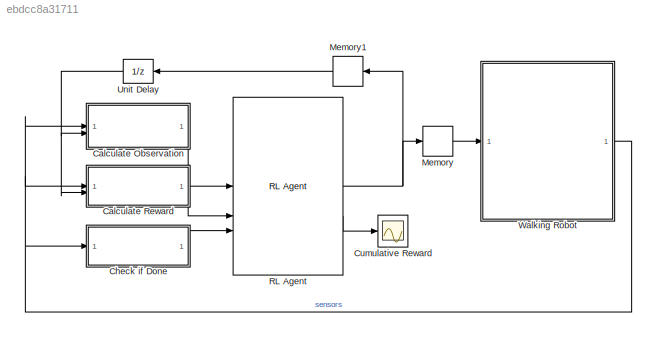
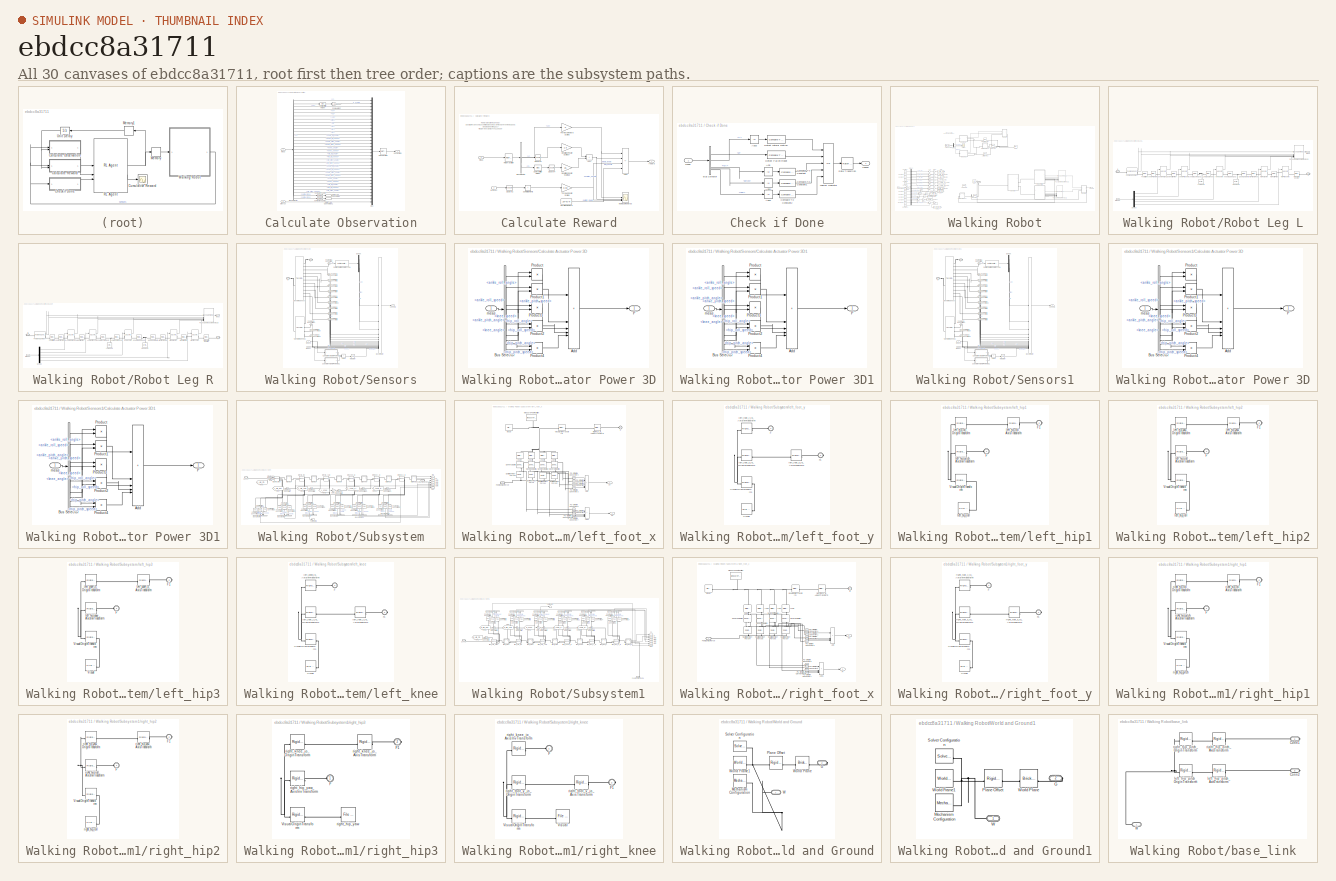
[diagram: thumbnail index - all 30 canvases of the model, root first then tree order]
MODEL slx_ebdcc8a31711
KIND model
CONFIG AbsTol = auto
CONFIG EnableMultiTasking = off
CONFIG FixedStep = auto
CONFIG MaxStep = auto
CONFIG MinStep = auto
CONFIG RelTol = 1e-3
CONFIG SampleTimeConstraint = Unconstrained
CONFIG SolverName = VariableStepAuto
CONFIG StartTime = 0.0
CONFIG StopTime = Tf
BLOCK [SubSystem] Calculate Observation
BLOCK [BusSelector] Calculate Observation/Bus Selector
  OutputSignals = Y,Z,VX,VY,VZ,yaw,pitch,roll,wx,wy,wz,measR.ankle_roll_angle,measR.ankle_roll_speed,measR.ankle_pitch_angle,measR.ankle_pitch_speed,measR.knee_angle,measR.knee_speed,measR.hip_roll_angle,measR.hip_roll_speed,measR.hip_pitch_angle,measR.hip_pitch_speed,measL.ankle_roll_angle,measL.ankle_roll_speed,measL.ankle_pitch_angle,measL.ankle_pitch_speed,measL.knee_angle,measL.knee_speed,measL.hip_roll_angle,...<+102ch>
BLOCK [Reference] Calculate Observation/Compare To Zero  REF=simulink/Logic and Bit
Operations/Compare
To Zero
  SourceBlock = simulink/Logic and Bit\nOperations/Compare\nTo Zero
  SourceType = Compare To Zero
BLOCK [Reference] Calculate Observation/Compare To Zero1  REF=simulink/Logic and Bit
Operations/Compare
To Zero
  SourceBlock = simulink/Logic and Bit\nOperations/Compare\nTo Zero
  SourceType = Compare To Zero
BLOCK [DataTypeConversion] Calculate Observation/Data Type Conversion
  RndMeth = Floor
  SaturateOnIntegerOverflow = off
BLOCK [DataTypeConversion] Calculate Observation/Data Type Conversion1
  RndMeth = Floor
  SaturateOnIntegerOverflow = off
BLOCK [Mux] Calculate Observation/Mux
  DisplayOption = bar
  Inputs = 34
BLOCK [RateTransition] Calculate Observation/Rate Transition
BLOCK [Gain] Calculate Observation/Scale Height
  Gain = 1/0.05
BLOCK [Bias] Calculate Observation/Subtract Initial Height
  Bias = -init_height/100
  SaturateOnIntegerOverflow = off
BLOCK [Inport] Calculate Observation/meas
BLOCK [Outport] Calculate Observation/observation
  VectorParamsAs1DForOutWhenUnconnected = off
BLOCK [Inport] Calculate Observation/prevAct
  Port = 2
BLOCK [SubSystem] Calculate Reward
BLOCK [Sum] Calculate Reward/Add1
  IconShape = rectangular
BLOCK [Sum] Calculate Reward/Add2
  IconShape = rectangular
  Inputs = +--+
BLOCK [BusSelector] Calculate Reward/Bus Selector
  OutputSignals = VX,Y,Z
BLOCK [Gain] Calculate Reward/Deviation Penalty Scaling Y
  Gain = 1.5
BLOCK [Gain] Calculate Reward/Deviation Penalty Scaling Z
  Gain = 25
BLOCK [Constant] Calculate Reward/Duration Reward
  Value = 25*Ts/Tf
BLOCK [Gain] Calculate Reward/Forward Reward Scaling
BLOCK [Scope] Calculate Reward/Individual Rewards
  Floating = off
  NumInputPorts = 4
  ScopeSpecificationString = Simulink.scopes.TimeScopeBlockCfg('CurrentConfiguration', extmgr.ConfigurationSet(extmgr.Configuration('Core','General UI',true),extmgr.Configuration('Core','Source UI',true),extmgr.Configuration('Sources','WiredSimulink',true,'DataLoggingVariableName','ScopeData1'),extmgr.Configuration('Visuals','Time Domain',true,'SerializedDisplays',{struct('MinYLimReal','-0.09018','MaxYLimReal','0.81162','YLab...<+1479ch>
BLOCK [RateTransition] Calculate Reward/Rate Transition
  OutPortSampleTime = Ts
BLOCK [Math] Calculate Reward/Square2
  Operator = square
  SignedPower = on
BLOCK [Math] Calculate Reward/Square3
  Operator = square
  SignedPower = on
BLOCK [Math] Calculate Reward/Square4
  Operator = square
  SignedPower = on
BLOCK [Bias] Calculate Reward/Subtract Initial Height
  Bias = -init_height/100
  SaturateOnIntegerOverflow = off
BLOCK [Sum] Calculate Reward/Sum of Elements
  IconShape = rectangular
  Inputs = +
BLOCK [Gain] Calculate Reward/Torque Penalty Scaling
  Gain = 0.03
BLOCK [Inport] Calculate Reward/meas
BLOCK [Inport] Calculate Reward/prevAct
  Port = 2
BLOCK [Outport] Calculate Reward/reward
  VectorParamsAs1DForOutWhenUnconnected = off
BLOCK [SubSystem] Check if Done
BLOCK [Abs] Check if Done/Abs
  SaturateOnIntegerOverflow = off
BLOCK [Abs] Check if Done/Abs1
  SaturateOnIntegerOverflow = off
BLOCK [Abs] Check if Done/Abs2
  SaturateOnIntegerOverflow = off
BLOCK [Abs] Check if Done/Abs3
  SaturateOnIntegerOverflow = off
BLOCK [BusSelector] Check if Done/Bus Selector
  OutputSignals = Y,Z,roll,pitch,yaw
BLOCK [Reference] Check if Done/Compare To Constant  REF=simulink/Logic and Bit
Operations/Compare
To Constant
  SourceBlock = simulink/Logic and Bit\nOperations/Compare\nTo Constant
  SourceType = Compare To Constant
BLOCK [Reference] Check if Done/Compare To Constant1  REF=simulink/Logic and Bit
Operations/Compare
To Constant
  SourceBlock = simulink/Logic and Bit\nOperations/Compare\nTo Constant
  SourceType = Compare To Constant
BLOCK [Reference] Check if Done/Compare To Constant2  REF=simulink/Logic and Bit
Operations/Compare
To Constant
  SourceBlock = simulink/Logic and Bit\nOperations/Compare\nTo Constant
  SourceType = Compare To Constant
BLOCK [Reference] Check if Done/Detect Fallen Robot  REF=simulink/Logic and Bit
Operations/Compare
To Constant
  SourceBlock = simulink/Logic and Bit\nOperations/Compare\nTo Constant
  SourceType = Compare To Constant
BLOCK [Reference] Check if Done/Detect Lateral Motion  REF=simulink/Logic and Bit
Operations/Compare
To Constant
  SourceBlock = simulink/Logic and Bit\nOperations/Compare\nTo Constant
  SourceType = Compare To Constant
BLOCK [Logic] Check if Done/Logical Operator
  AllPortsSameDT = off
  Inputs = 5
  Operator = OR
  OutDataTypeStr = boolean
BLOCK [RateTransition] Check if Done/Rate Transition
BLOCK [Outport] Check if Done/isdone
  VectorParamsAs1DForOutWhenUnconnected = off
BLOCK [Inport] Check if Done/meas
BLOCK [Scope] Cumulative Reward
  Floating = off
  NumInputPorts = 1
  ScopeSpecificationString = Simulink.scopes.TimeScopeBlockCfg('CurrentConfiguration', extmgr.ConfigurationSet(extmgr.Configuration('Core','General UI',true),extmgr.Configuration('Core','Source UI',true),extmgr.Configuration('Sources','WiredSimulink',true,'DataLoggingVariableName','ScopeData1'),extmgr.Configuration('Visuals','Time Domain',true,'SerializedDisplays',{struct('MinYLimReal','-0.1436','MaxYLimReal','0.01596','YLabe...<+1419ch>
BLOCK [Memory] Memory
BLOCK [Memory] Memory1
BLOCK [Reference] RL Agent  REF=rllib/RL Agent
  SourceBlock = rllib/RL Agent
  SourceType = RL Agent
BLOCK [UnitDelay] Unit Delay
  HasFrameUpgradeWarning = on
  SampleTime = -1
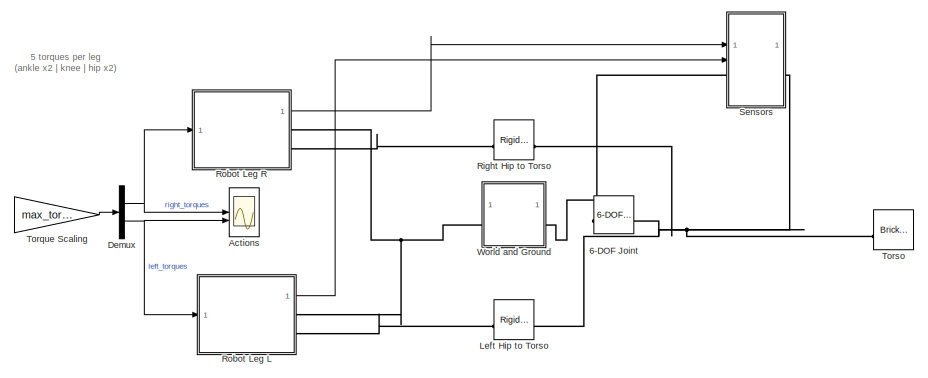
[diagram: Walking Robot - part 1/3, top center region]
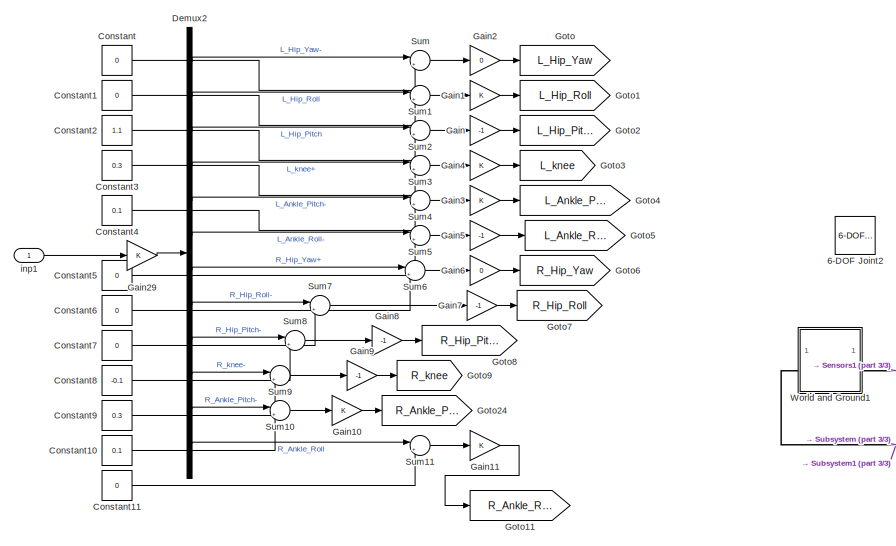
[diagram: Walking Robot - part 2/3, bottom left region]
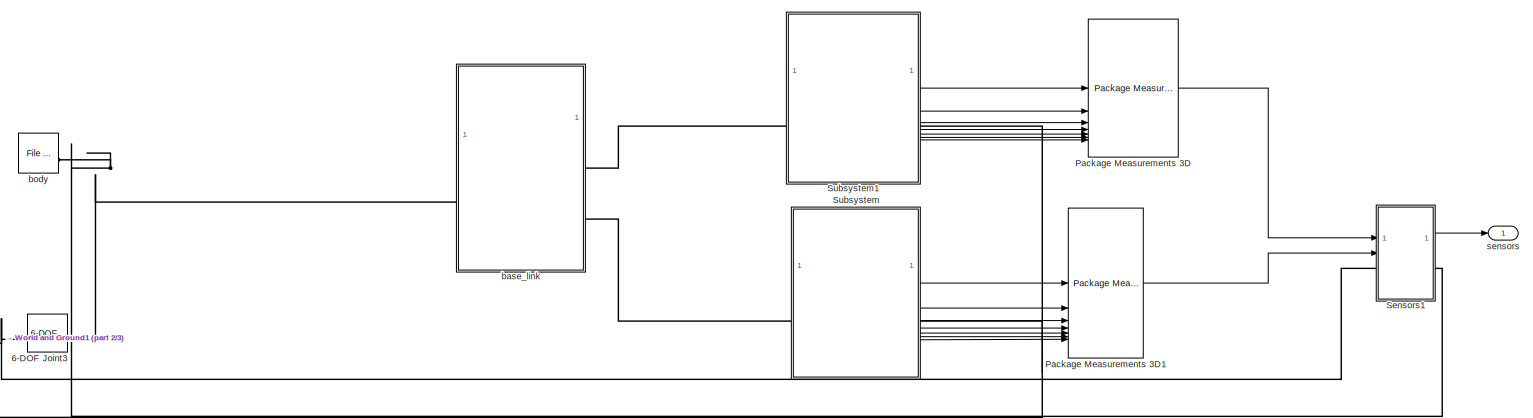
[diagram: Walking Robot - part 3/3, bottom right region]
BLOCK [SubSystem] Walking Robot
BLOCK [Reference] Walking Robot/6-DOF Joint  REF=sm_lib/Joints/6-DOF Joint
  Commented = on
  SourceBlock = sm_lib/Joints/6-DOF Joint
  SourceType = 6-DOF Joint
BLOCK [Reference] Walking Robot/6-DOF Joint2  REF=sm_lib/Joints/6-DOF Joint
  SourceBlock = sm_lib/Joints/6-DOF Joint
  SourceType = 6-DOF Joint
BLOCK [Reference] Walking Robot/6-DOF Joint3  REF=sm_lib/Joints/6-DOF Joint
  SourceBlock = sm_lib/Joints/6-DOF Joint
  SourceType = 6-DOF Joint
BLOCK [Scope] Walking Robot/Actions
  Commented = on
  Floating = off
  NumInputPorts = 2
  ScopeSpecificationString = Simulink.scopes.TimeScopeBlockCfg('CurrentConfiguration', extmgr.ConfigurationSet(extmgr.Configuration('Core','General UI',true),extmgr.Configuration('Core','Source UI',true),extmgr.Configuration('Sources','WiredSimulink',true,'DataLoggingVariableName','ScopeData1'),extmgr.Configuration('Visuals','Time Domain',true,'SerializedDisplays',{struct('MinYLimReal','-3.75','MaxYLimReal','3.75','YLabelReal...<+2264ch>
BLOCK [Constant] Walking Robot/Constant
  Value = 0
BLOCK [Constant] Walking Robot/Constant1
  Value = 0
BLOCK [Constant] Walking Robot/Constant10
  Value = 0.1
BLOCK [Constant] Walking Robot/Constant11
  Value = 0
BLOCK [Constant] Walking Robot/Constant2
  Value = 1.1
BLOCK [Constant] Walking Robot/Constant3
  Value = 0.3
BLOCK [Constant] Walking Robot/Constant4
  Value = 0.1
BLOCK [Constant] Walking Robot/Constant5
  Value = 0
BLOCK [Constant] Walking Robot/Constant6
  Value = 0
BLOCK [Constant] Walking Robot/Constant7
  Value = 0
BLOCK [Constant] Walking Robot/Constant8
  Value = -0.1
BLOCK [Constant] Walking Robot/Constant9
  Value = 0.3
BLOCK [Demux] Walking Robot/Demux
  Commented = on
  Outputs = 2
BLOCK [Demux] Walking Robot/Demux2
  Outputs = 12
BLOCK [Gain] Walking Robot/Gain
  Gain = -1
BLOCK [Gain] Walking Robot/Gain1
BLOCK [Gain] Walking Robot/Gain10
BLOCK [Gain] Walking Robot/Gain11
BLOCK [Gain] Walking Robot/Gain2
  Gain = 0
BLOCK [Gain] Walking Robot/Gain29
BLOCK [Gain] Walking Robot/Gain3
BLOCK [Gain] Walking Robot/Gain4
BLOCK [Gain] Walking Robot/Gain5
  Gain = -1
BLOCK [Gain] Walking Robot/Gain6
  Gain = 0
BLOCK [Gain] Walking Robot/Gain7
  Gain = -1
BLOCK [Gain] Walking Robot/Gain8
  Gain = -1
BLOCK [Gain] Walking Robot/Gain9
  Gain = -1
BLOCK [Goto] Walking Robot/Goto
  GotoTag = L_Hip_Yaw
BLOCK [Goto] Walking Robot/Goto1
  GotoTag = L_Hip_Roll
BLOCK [Goto] Walking Robot/Goto11
  GotoTag = R_Ankle_Roll
BLOCK [Goto] Walking Robot/Goto2
  GotoTag = L_Hip_Pitch
BLOCK [Goto] Walking Robot/Goto24
  GotoTag = R_Ankle_Pitch
BLOCK [Goto] Walking Robot/Goto3
  GotoTag = L_knee
BLOCK [Goto] Walking Robot/Goto4
  GotoTag = L_Ankle_Pitch
BLOCK [Goto] Walking Robot/Goto5
  GotoTag = L_Ankle_Roll
BLOCK [Goto] Walking Robot/Goto6
  GotoTag = R_Hip_Yaw
BLOCK [Goto] Walking Robot/Goto7
  GotoTag = R_Hip_Roll
BLOCK [Goto] Walking Robot/Goto8
  GotoTag = R_Hip_Pitch
BLOCK [Goto] Walking Robot/Goto9
  GotoTag = R_knee
BLOCK [Reference] Walking Robot/Left Hip to Torso  REF=sm_lib/Frames and
Transforms/Rigid
Transform
  Commented = on
  SourceBlock = sm_lib/Frames and\nTransforms/Rigid\nTransform
  SourceType = Rigid\nTransform
BLOCK [Reference] Walking Robot/Package Measurements 3D  REF=walkingRobotUtils/Package
Measurements 3D
  SourceBlock = walkingRobotUtils/Package\nMeasurements 3D
  SourceType = SubSystem
BLOCK [Reference] Walking Robot/Package Measurements 3D1  REF=walkingRobotUtils/Package
Measurements 3D
  SourceBlock = walkingRobotUtils/Package\nMeasurements 3D
  SourceType = SubSystem
BLOCK [Reference] Walking Robot/Right Hip to Torso  REF=sm_lib/Frames and
Transforms/Rigid
Transform
  Commented = on
  SourceBlock = sm_lib/Frames and\nTransforms/Rigid\nTransform
  SourceType = Rigid\nTransform
BLOCK [SubSystem] Walking Robot/Robot Leg L
  Commented = on
BLOCK [Reference] Walking Robot/Robot Leg L/Ankle Pitch Joint  REF=walkingRobotUtils/Leg Joint with Limits
  SourceBlock = walkingRobotUtils/Leg Joint with Limits
  SourceType = Leg Joint with Limits
BLOCK [Reference] Walking Robot/Robot Leg L/Ankle Pitch to Roll  REF=sm_lib/Frames and
Transforms/Rigid
Transform
  SourceBlock = sm_lib/Frames and\nTransforms/Rigid\nTransform
  SourceType = Rigid\nTransform
BLOCK [Reference] Walking Robot/Robot Leg L/Ankle Roll Joint  REF=walkingRobotUtils/Leg Joint with Limits
  SourceBlock = walkingRobotUtils/Leg Joint with Limits
  SourceType = Leg Joint with Limits
BLOCK [Reference] Walking Robot/Robot Leg L/Ankle Roll to Pitch  REF=sm_lib/Frames and
Transforms/Rigid
Transform
  SourceBlock = sm_lib/Frames and\nTransforms/Rigid\nTransform
  SourceType = Rigid\nTransform
BLOCK [Reference] Walking Robot/Robot Leg L/Ankle to Lower Leg  REF=sm_lib/Frames and
Transforms/Rigid
Transform
  SourceBlock = sm_lib/Frames and\nTransforms/Rigid\nTransform
  SourceType = Rigid\nTransform
BLOCK [Demux] Walking Robot/Robot Leg L/Demux
  Outputs = 5
BLOCK [Reference] Walking Robot/Robot Leg L/Foot Offset  REF=sm_lib/Frames and
Transforms/Rigid
Transform
  SourceBlock = sm_lib/Frames and\nTransforms/Rigid\nTransform
  SourceType = Rigid\nTransform
BLOCK [Reference] Walking Robot/Robot Leg L/Foot and Contact  REF=walkingRobotUtils/Walking Robot
(Control Design)/Robot Leg R/Foot and Contact
  SourceBlock = walkingRobotUtils/Walking Robot\n(Control Design)/Robot Leg R/Foot and Contact
  SourceType = SubSystem
BLOCK [PMIOPort] Walking Robot/Robot Leg L/G
  Side = Right
BLOCK [PMIOPort] Walking Robot/Robot Leg L/H
  Port = 2
  Side = Right
BLOCK [Reference] Walking Robot/Robot Leg L/Hip Pitch Joint  REF=walkingRobotUtils/Leg Joint with Limits
  SourceBlock = walkingRobotUtils/Leg Joint with Limits
  SourceType = Leg Joint with Limits
BLOCK [Reference] Walking Robot/Robot Leg L/Hip Pitch to Roll  REF=sm_lib/Frames and
Transforms/Rigid
Transform
  SourceBlock = sm_lib/Frames and\nTransforms/Rigid\nTransform
  SourceType = Rigid\nTransform
BLOCK [Reference] Walking Robot/Robot Leg L/Hip Roll Joint  REF=walkingRobotUtils/Leg Joint with Limits
  SourceBlock = walkingRobotUtils/Leg Joint with Limits
  SourceType = Leg Joint with Limits
BLOCK [Reference] Walking Robot/Robot Leg L/Hip Roll to Pitch  REF=sm_lib/Frames and
Transforms/Rigid
Transform
  SourceBlock = sm_lib/Frames and\nTransforms/Rigid\nTransform
  SourceType = Rigid\nTransform
BLOCK [Reference] Walking Robot/Robot Leg L/Hip to World Coords  REF=sm_lib/Frames and
Transforms/Rigid
Transform
  SourceBlock = sm_lib/Frames and\nTransforms/Rigid\nTransform
  SourceType = Rigid\nTransform
BLOCK [Reference] Walking Robot/Robot Leg L/Knee Joint  REF=walkingRobotUtils/Leg Joint with Limits
  SourceBlock = walkingRobotUtils/Leg Joint with Limits
  SourceType = Leg Joint with Limits
BLOCK [Reference] Walking Robot/Robot Leg L/Knee to Upper Leg  REF=sm_lib/Frames and
Transforms/Rigid
Transform
  SourceBlock = sm_lib/Frames and\nTransforms/Rigid\nTransform
  SourceType = Rigid\nTransform
BLOCK [Reference] Walking Robot/Robot Leg L/Lower Leg  REF=sm_lib/Body Elements/Cylindrical Solid
  NameLocation = right
  SourceBlock = sm_lib/Body Elements/Cylindrical Solid
  SourceType = Cylindrical Solid
BLOCK [Reference] Walking Robot/Robot Leg L/Lower Leg to Knee  REF=sm_lib/Frames and
Transforms/Rigid
Transform
  SourceBlock = sm_lib/Frames and\nTransforms/Rigid\nTransform
  SourceType = Rigid\nTransform
BLOCK [Reference] Walking Robot/Robot Leg L/Package Measurements 3D  REF=walkingRobotUtils/Package
Measurements 3D
  SourceBlock = walkingRobotUtils/Package\nMeasurements 3D
  SourceType = SubSystem
BLOCK [Reference] Walking Robot/Robot Leg L/Upper Leg  REF=sm_lib/Body Elements/Cylindrical Solid
  NameLocation = right
  SourceBlock = sm_lib/Body Elements/Cylindrical Solid
  SourceType = Cylindrical Solid
BLOCK [Reference] Walking Robot/Robot Leg L/Upper Leg to Hip  REF=sm_lib/Frames and
Transforms/Rigid
Transform
  SourceBlock = sm_lib/Frames and\nTransforms/Rigid\nTransform
  SourceType = Rigid\nTransform
BLOCK [Outport] Walking Robot/Robot Leg L/meas
  VectorParamsAs1DForOutWhenUnconnected = off
BLOCK [Inport] Walking Robot/Robot Leg L/torques
BLOCK [SubSystem] Walking Robot/Robot Leg R
  Commented = on
BLOCK [Reference] Walking Robot/Robot Leg R/Ankle Pitch Joint  REF=walkingRobotUtils/Leg Joint with Limits
  SourceBlock = walkingRobotUtils/Leg Joint with Limits
  SourceType = Leg Joint with Limits
BLOCK [Reference] Walking Robot/Robot Leg R/Ankle Pitch to Roll  REF=sm_lib/Frames and
Transforms/Rigid
Transform
  SourceBlock = sm_lib/Frames and\nTransforms/Rigid\nTransform
  SourceType = Rigid\nTransform
BLOCK [Reference] Walking Robot/Robot Leg R/Ankle Roll Joint  REF=walkingRobotUtils/Leg Joint with Limits
  SourceBlock = walkingRobotUtils/Leg Joint with Limits
  SourceType = Leg Joint with Limits
BLOCK [Reference] Walking Robot/Robot Leg R/Ankle Roll to Pitch  REF=sm_lib/Frames and
Transforms/Rigid
Transform
  SourceBlock = sm_lib/Frames and\nTransforms/Rigid\nTransform
  SourceType = Rigid\nTransform
BLOCK [Reference] Walking Robot/Robot Leg R/Ankle to Lower Leg  REF=sm_lib/Frames and
Transforms/Rigid
Transform
  SourceBlock = sm_lib/Frames and\nTransforms/Rigid\nTransform
  SourceType = Rigid\nTransform
BLOCK [Demux] Walking Robot/Robot Leg R/Demux
  Outputs = 5
BLOCK [Reference] Walking Robot/Robot Leg R/Foot Offset  REF=sm_lib/Frames and
Transforms/Rigid
Transform
  SourceBlock = sm_lib/Frames and\nTransforms/Rigid\nTransform
  SourceType = Rigid\nTransform
BLOCK [Reference] Walking Robot/Robot Leg R/Foot and Contact  REF=walkingRobotUtils/Walking Robot
(Control Design)/Robot Leg R/Foot and Contact
  SourceBlock = walkingRobotUtils/Walking Robot\n(Control Design)/Robot Leg R/Foot and Contact
  SourceType = SubSystem
BLOCK [PMIOPort] Walking Robot/Robot Leg R/G
  Side = Right
BLOCK [PMIOPort] Walking Robot/Robot Leg R/H
  Port = 2
  Side = Right
BLOCK [Reference] Walking Robot/Robot Leg R/Hip Pitch Joint  REF=walkingRobotUtils/Leg Joint with Limits
  SourceBlock = walkingRobotUtils/Leg Joint with Limits
  SourceType = Leg Joint with Limits
BLOCK [Reference] Walking Robot/Robot Leg R/Hip Pitch to Roll  REF=sm_lib/Frames and
Transforms/Rigid
Transform
  SourceBlock = sm_lib/Frames and\nTransforms/Rigid\nTransform
  SourceType = Rigid\nTransform
BLOCK [Reference] Walking Robot/Robot Leg R/Hip Roll Joint  REF=walkingRobotUtils/Leg Joint with Limits
  SourceBlock = walkingRobotUtils/Leg Joint with Limits
  SourceType = Leg Joint with Limits
BLOCK [Reference] Walking Robot/Robot Leg R/Hip Roll to Pitch  REF=sm_lib/Frames and
Transforms/Rigid
Transform
  SourceBlock = sm_lib/Frames and\nTransforms/Rigid\nTransform
  SourceType = Rigid\nTransform
BLOCK [Reference] Walking Robot/Robot Leg R/Hip to World Coords  REF=sm_lib/Frames and
Transforms/Rigid
Transform
  SourceBlock = sm_lib/Frames and\nTransforms/Rigid\nTransform
  SourceType = Rigid\nTransform
BLOCK [Reference] Walking Robot/Robot Leg R/Knee Joint  REF=walkingRobotUtils/Leg Joint with Limits
  SourceBlock = walkingRobotUtils/Leg Joint with Limits
  SourceType = Leg Joint with Limits
BLOCK [Reference] Walking Robot/Robot Leg R/Knee to Upper Leg  REF=sm_lib/Frames and
Transforms/Rigid
Transform
  SourceBlock = sm_lib/Frames and\nTransforms/Rigid\nTransform
  SourceType = Rigid\nTransform
BLOCK [Reference] Walking Robot/Robot Leg R/Lower Leg  REF=sm_lib/Body Elements/Cylindrical Solid
  NameLocation = right
  SourceBlock = sm_lib/Body Elements/Cylindrical Solid
  SourceType = Cylindrical Solid
BLOCK [Reference] Walking Robot/Robot Leg R/Lower Leg to Knee  REF=sm_lib/Frames and
Transforms/Rigid
Transform
  SourceBlock = sm_lib/Frames and\nTransforms/Rigid\nTransform
  SourceType = Rigid\nTransform
BLOCK [Reference] Walking Robot/Robot Leg R/Package Measurements 3D  REF=walkingRobotUtils/Package
Measurements 3D
  SourceBlock = walkingRobotUtils/Package\nMeasurements 3D
  SourceType = SubSystem
BLOCK [Reference] Walking Robot/Robot Leg R/Upper Leg  REF=sm_lib/Body Elements/Cylindrical Solid
  NameLocation = right
  SourceBlock = sm_lib/Body Elements/Cylindrical Solid
  SourceType = Cylindrical Solid
BLOCK [Reference] Walking Robot/Robot Leg R/Upper Leg to Hip  REF=sm_lib/Frames and
Transforms/Rigid
Transform
  SourceBlock = sm_lib/Frames and\nTransforms/Rigid\nTransform
  SourceType = Rigid\nTransform
BLOCK [Outport] Walking Robot/Robot Leg R/meas
  VectorParamsAs1DForOutWhenUnconnected = off
BLOCK [Inport] Walking Robot/Robot Leg R/torques
BLOCK [SubSystem] Walking Robot/Sensors
  Commented = on
BLOCK [Sum] Walking Robot/Sensors/Add3
  IconShape = rectangular
BLOCK [PMIOPort] Walking Robot/Sensors/B
  Port = 2
  Side = Left
BLOCK [BusCreator] Walking Robot/Sensors/Bus Creator
  DisplayOption = bar
  InheritFromInputs = on
  Inputs = 18
BLOCK [SubSystem] Walking Robot/Sensors/Calculate Actuator Power 3D
BLOCK [Sum] Walking Robot/Sensors/Calculate Actuator Power 3D/Add
  IconShape = rectangular
  Inputs = 5
BLOCK [BusSelector] Walking Robot/Sensors/Calculate Actuator Power 3D/Bus Selector
  OutputSignals = ankle_roll_angle,ankle_roll_speed,ankle_pitch_angle,ankle_pitch_speed,knee_angle,knee_speed,hip_roll_angle,hip_roll_speed,hip_pitch_angle,hip_pitch_speed
BLOCK [Outport] Walking Robot/Sensors/Calculate Actuator Power 3D/P
  VectorParamsAs1DForOutWhenUnconnected = off
BLOCK [Product] Walking Robot/Sensors/Calculate Actuator Power 3D/Product
BLOCK [Product] Walking Robot/Sensors/Calculate Actuator Power 3D/Product1
BLOCK [Product] Walking Robot/Sensors/Calculate Actuator Power 3D/Product2
BLOCK [Product] Walking Robot/Sensors/Calculate Actuator Power 3D/Product3
BLOCK [Product] Walking Robot/Sensors/Calculate Actuator Power 3D/Product4
BLOCK [Inport] Walking Robot/Sensors/Calculate Actuator Power 3D/meas
BLOCK [SubSystem] Walking Robot/Sensors/Calculate Actuator Power 3D1
BLOCK [Sum] Walking Robot/Sensors/Calculate Actuator Power 3D1/Add
  IconShape = rectangular
  Inputs = 5
BLOCK [BusSelector] Walking Robot/Sensors/Calculate Actuator Power 3D1/Bus Selector
  OutputSignals = ankle_roll_angle,ankle_roll_speed,ankle_pitch_angle,ankle_pitch_speed,knee_angle,knee_speed,hip_roll_angle,hip_roll_speed,hip_pitch_angle,hip_pitch_speed
BLOCK [Outport] Walking Robot/Sensors/Calculate Actuator Power 3D1/P
  VectorParamsAs1DForOutWhenUnconnected = off
BLOCK [Product] Walking Robot/Sensors/Calculate Actuator Power 3D1/Product
BLOCK [Product] Walking Robot/Sensors/Calculate Actuator Power 3D1/Product1
BLOCK [Product] Walking Robot/Sensors/Calculate Actuator Power 3D1/Product2
BLOCK [Product] Walking Robot/Sensors/Calculate Actuator Power 3D1/Product3
BLOCK [Product] Walking Robot/Sensors/Calculate Actuator Power 3D1/Product4
BLOCK [Inport] Walking Robot/Sensors/Calculate Actuator Power 3D1/meas
BLOCK [Demux] Walking Robot/Sensors/Demux
  Outputs = 3
BLOCK [PMIOPort] Walking Robot/Sensors/F
  Side = Right
BLOCK [Integrator] Walking Robot/Sensors/Integrator
BLOCK [Reference] Walking Robot/Sensors/PS-Simulink Converter1  REF=nesl_utility/PS-Simulink
Converter
  SourceBlock = nesl_utility/PS-Simulink\nConverter
  SourceType = PS-Simulink\nConverter
BLOCK [Reference] Walking Robot/Sensors/PS-Simulink Converter13  REF=nesl_utility/PS-Simulink
Converter
  SourceBlock = nesl_utility/PS-Simulink\nConverter
  SourceType = PS-Simulink\nConverter
BLOCK [Reference] Walking Robot/Sensors/PS-Simulink Converter14  REF=nesl_utility/PS-Simulink
Converter
  SourceBlock = nesl_utility/PS-Simulink\nConverter
  SourceType = PS-Simulink\nConverter
BLOCK [Reference] Walking Robot/Sensors/PS-Simulink Converter15  REF=nesl_utility/PS-Simulink
Converter
  SourceBlock = nesl_utility/PS-Simulink\nConverter
  SourceType = PS-Simulink\nConverter
BLOCK [Reference] Walking Robot/Sensors/PS-Simulink Converter16  REF=nesl_utility/PS-Simulink
Converter
  SourceBlock = nesl_utility/PS-Simulink\nConverter
  SourceType = PS-Simulink\nConverter
BLOCK [Reference] Walking Robot/Sensors/PS-Simulink Converter2  REF=nesl_utility/PS-Simulink
Converter
  SourceBlock = nesl_utility/PS-Simulink\nConverter
  SourceType = PS-Simulink\nConverter
BLOCK [Reference] Walking Robot/Sensors/PS-Simulink Converter3  REF=nesl_utility/PS-Simulink
Converter
  SourceBlock = nesl_utility/PS-Simulink\nConverter
  SourceType = PS-Simulink\nConverter
BLOCK [Reference] Walking Robot/Sensors/PS-Simulink Converter4  REF=nesl_utility/PS-Simulink
Converter
  SourceBlock = nesl_utility/PS-Simulink\nConverter
  SourceType = PS-Simulink\nConverter
BLOCK [Reference] Walking Robot/Sensors/PS-Simulink Converter5  REF=nesl_utility/PS-Simulink
Converter
  SourceBlock = nesl_utility/PS-Simulink\nConverter
  SourceType = PS-Simulink\nConverter
BLOCK [Reference] Walking Robot/Sensors/PS-Simulink Converter6  REF=nesl_utility/PS-Simulink
Converter
  SourceBlock = nesl_utility/PS-Simulink\nConverter
  SourceType = PS-Simulink\nConverter
BLOCK [Reference] Walking Robot/Sensors/PS-Simulink Converter7  REF=nesl_utility/PS-Simulink
Converter
  SourceBlock = nesl_utility/PS-Simulink\nConverter
  SourceType = PS-Simulink\nConverter
BLOCK [Reference] Walking Robot/Sensors/PS-Simulink Converter8  REF=nesl_utility/PS-Simulink
Converter
  SourceBlock = nesl_utility/PS-Simulink\nConverter
  SourceType = PS-Simulink\nConverter
BLOCK [Reference] Walking Robot/Sensors/PS-Simulink Converter9  REF=nesl_utility/PS-Simulink
Converter
  SourceBlock = nesl_utility/PS-Simulink\nConverter
  SourceType = PS-Simulink\nConverter
BLOCK [Reference] Walking Robot/Sensors/Rotation Matrix to Roll Pitch Yaw  REF=walkingRobotUtils/Rotation Matrix to 
Roll Pitch Yaw
  SourceBlock = walkingRobotUtils/Rotation Matrix to \nRoll Pitch Yaw
  SourceType = SubSystem
BLOCK [Reference] Walking Robot/Sensors/Transform Sensor  REF=sm_lib/Frames and
Transforms/Transform
Sensor
  SourceBlock = sm_lib/Frames and\nTransforms/Transform\nSensor
  SourceType = Transform\nSensor
BLOCK [Reference] Walking Robot/Sensors/Transform Sensor1  REF=sm_lib/Frames and
Transforms/Transform
Sensor
  SourceBlock = sm_lib/Frames and\nTransforms/Transform\nSensor
  SourceType = Transform\nSensor
BLOCK [Inport] Walking Robot/Sensors/measL
  Port = 2
BLOCK [Inport] Walking Robot/Sensors/measR
BLOCK [Outport] Walking Robot/Sensors/sensors
  VectorParamsAs1DForOutWhenUnconnected = off
BLOCK [SubSystem] Walking Robot/Sensors1
BLOCK [Sum] Walking Robot/Sensors1/Add3
  IconShape = rectangular
BLOCK [PMIOPort] Walking Robot/Sensors1/B
  Port = 2
  Side = Left
BLOCK [BusCreator] Walking Robot/Sensors1/Bus Creator
  DisplayOption = bar
  InheritFromInputs = on
  Inputs = 18
BLOCK [SubSystem] Walking Robot/Sensors1/Calculate Actuator Power 3D
BLOCK [Sum] Walking Robot/Sensors1/Calculate Actuator Power 3D/Add
  IconShape = rectangular
  Inputs = 5
BLOCK [BusSelector] Walking Robot/Sensors1/Calculate Actuator Power 3D/Bus Selector
  OutputSignals = ankle_roll_angle,ankle_roll_speed,ankle_pitch_angle,ankle_pitch_speed,knee_angle,knee_speed,hip_roll_angle,hip_roll_speed,hip_pitch_angle,hip_pitch_speed
BLOCK [Outport] Walking Robot/Sensors1/Calculate Actuator Power 3D/P
  VectorParamsAs1DForOutWhenUnconnected = off
BLOCK [Product] Walking Robot/Sensors1/Calculate Actuator Power 3D/Product
BLOCK [Product] Walking Robot/Sensors1/Calculate Actuator Power 3D/Product1
BLOCK [Product] Walking Robot/Sensors1/Calculate Actuator Power 3D/Product2
BLOCK [Product] Walking Robot/Sensors1/Calculate Actuator Power 3D/Product3
BLOCK [Product] Walking Robot/Sensors1/Calculate Actuator Power 3D/Product4
BLOCK [Inport] Walking Robot/Sensors1/Calculate Actuator Power 3D/meas
BLOCK [SubSystem] Walking Robot/Sensors1/Calculate Actuator Power 3D1
BLOCK [Sum] Walking Robot/Sensors1/Calculate Actuator Power 3D1/Add
  IconShape = rectangular
  Inputs = 5
BLOCK [BusSelector] Walking Robot/Sensors1/Calculate Actuator Power 3D1/Bus Selector
  OutputSignals = ankle_roll_angle,ankle_roll_speed,ankle_pitch_angle,ankle_pitch_speed,knee_angle,knee_speed,hip_roll_angle,hip_roll_speed,hip_pitch_angle,hip_pitch_speed
BLOCK [Outport] Walking Robot/Sensors1/Calculate Actuator Power 3D1/P
  VectorParamsAs1DForOutWhenUnconnected = off
BLOCK [Product] Walking Robot/Sensors1/Calculate Actuator Power 3D1/Product
BLOCK [Product] Walking Robot/Sensors1/Calculate Actuator Power 3D1/Product1
BLOCK [Product] Walking Robot/Sensors1/Calculate Actuator Power 3D1/Product2
BLOCK [Product] Walking Robot/Sensors1/Calculate Actuator Power 3D1/Product3
BLOCK [Product] Walking Robot/Sensors1/Calculate Actuator Power 3D1/Product4
BLOCK [Inport] Walking Robot/Sensors1/Calculate Actuator Power 3D1/meas
BLOCK [Demux] Walking Robot/Sensors1/Demux
  Outputs = 3
BLOCK [PMIOPort] Walking Robot/Sensors1/F
  Side = Right
BLOCK [Integrator] Walking Robot/Sensors1/Integrator
BLOCK [Reference] Walking Robot/Sensors1/PS-Simulink Converter1  REF=nesl_utility/PS-Simulink
Converter
  SourceBlock = nesl_utility/PS-Simulink\nConverter
  SourceType = PS-Simulink\nConverter
BLOCK [Reference] Walking Robot/Sensors1/PS-Simulink Converter13  REF=nesl_utility/PS-Simulink
Converter
  SourceBlock = nesl_utility/PS-Simulink\nConverter
  SourceType = PS-Simulink\nConverter
BLOCK [Reference] Walking Robot/Sensors1/PS-Simulink Converter14  REF=nesl_utility/PS-Simulink
Converter
  SourceBlock = nesl_utility/PS-Simulink\nConverter
  SourceType = PS-Simulink\nConverter
BLOCK [Reference] Walking Robot/Sensors1/PS-Simulink Converter15  REF=nesl_utility/PS-Simulink
Converter
  SourceBlock = nesl_utility/PS-Simulink\nConverter
  SourceType = PS-Simulink\nConverter
BLOCK [Reference] Walking Robot/Sensors1/PS-Simulink Converter16  REF=nesl_utility/PS-Simulink
Converter
  SourceBlock = nesl_utility/PS-Simulink\nConverter
  SourceType = PS-Simulink\nConverter
BLOCK [Reference] Walking Robot/Sensors1/PS-Simulink Converter2  REF=nesl_utility/PS-Simulink
Converter
  SourceBlock = nesl_utility/PS-Simulink\nConverter
  SourceType = PS-Simulink\nConverter
BLOCK [Reference] Walking Robot/Sensors1/PS-Simulink Converter3  REF=nesl_utility/PS-Simulink
Converter
  SourceBlock = nesl_utility/PS-Simulink\nConverter
  SourceType = PS-Simulink\nConverter
BLOCK [Reference] Walking Robot/Sensors1/PS-Simulink Converter4  REF=nesl_utility/PS-Simulink
Converter
  SourceBlock = nesl_utility/PS-Simulink\nConverter
  SourceType = PS-Simulink\nConverter
BLOCK [Reference] Walking Robot/Sensors1/PS-Simulink Converter5  REF=nesl_utility/PS-Simulink
Converter
  SourceBlock = nesl_utility/PS-Simulink\nConverter
  SourceType = PS-Simulink\nConverter
BLOCK [Reference] Walking Robot/Sensors1/PS-Simulink Converter6  REF=nesl_utility/PS-Simulink
Converter
  SourceBlock = nesl_utility/PS-Simulink\nConverter
  SourceType = PS-Simulink\nConverter
BLOCK [Reference] Walking Robot/Sensors1/PS-Simulink Converter7  REF=nesl_utility/PS-Simulink
Converter
  SourceBlock = nesl_utility/PS-Simulink\nConverter
  SourceType = PS-Simulink\nConverter
BLOCK [Reference] Walking Robot/Sensors1/PS-Simulink Converter8  REF=nesl_utility/PS-Simulink
Converter
  SourceBlock = nesl_utility/PS-Simulink\nConverter
  SourceType = PS-Simulink\nConverter
BLOCK [Reference] Walking Robot/Sensors1/PS-Simulink Converter9  REF=nesl_utility/PS-Simulink
Converter
  SourceBlock = nesl_utility/PS-Simulink\nConverter
  SourceType = PS-Simulink\nConverter
BLOCK [Reference] Walking Robot/Sensors1/Rotation Matrix to Roll Pitch Yaw  REF=walkingRobotUtils/Rotation Matrix to 
Roll Pitch Yaw
  SourceBlock = walkingRobotUtils/Rotation Matrix to \nRoll Pitch Yaw
  SourceType = SubSystem
BLOCK [Reference] Walking Robot/Sensors1/Transform Sensor  REF=sm_lib/Frames and
Transforms/Transform
Sensor
  SourceBlock = sm_lib/Frames and\nTransforms/Transform\nSensor
  SourceType = Transform\nSensor
BLOCK [Reference] Walking Robot/Sensors1/Transform Sensor1  REF=sm_lib/Frames and
Transforms/Transform
Sensor
  SourceBlock = sm_lib/Frames and\nTransforms/Transform\nSensor
  SourceType = Transform\nSensor
BLOCK [Inport] Walking Robot/Sensors1/measL
  Port = 2
BLOCK [Inport] Walking Robot/Sensors1/measR
BLOCK [Outport] Walking Robot/Sensors1/sensors
  VectorParamsAs1DForOutWhenUnconnected = off
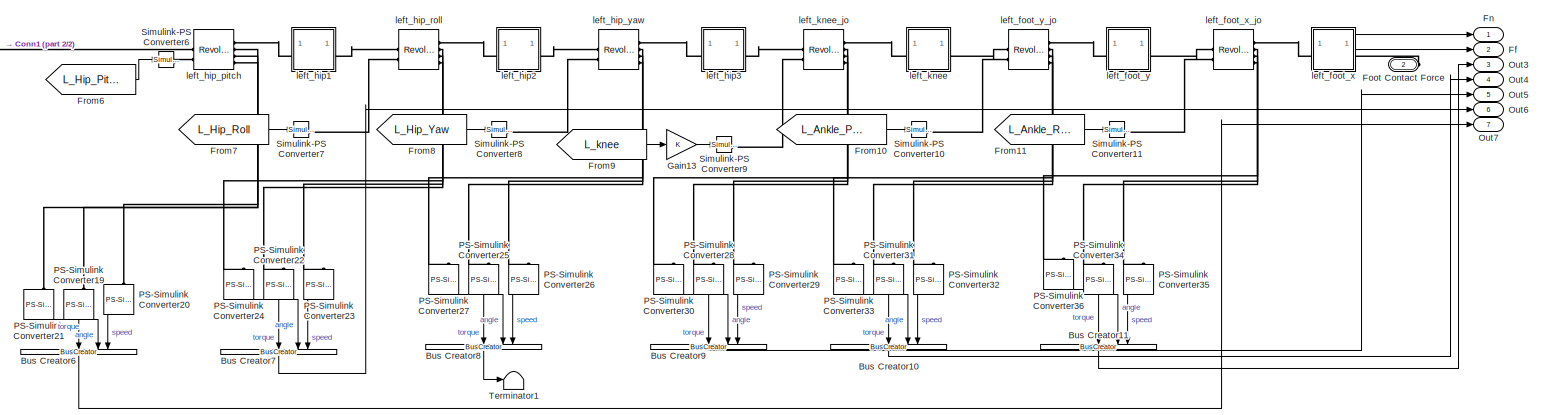
[diagram: Walking Robot/Subsystem - part 1/2, most of the canvas]
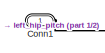
[diagram: Walking Robot/Subsystem - part 2/2, top left region]
BLOCK [SubSystem] Walking Robot/Subsystem
BLOCK [BusCreator] Walking Robot/Subsystem/Bus Creator10
  DisplayOption = bar
  InheritFromInputs = on
  Inputs = 3
  NameLocation = left
BLOCK [BusCreator] Walking Robot/Subsystem/Bus Creator11
  DisplayOption = bar
  InheritFromInputs = on
  Inputs = 3
  NameLocation = left
BLOCK [BusCreator] Walking Robot/Subsystem/Bus Creator6
  DisplayOption = bar
  InheritFromInputs = on
  Inputs = 3
  NameLocation = left
BLOCK [BusCreator] Walking Robot/Subsystem/Bus Creator7
  DisplayOption = bar
  InheritFromInputs = on
  Inputs = 3
  NameLocation = left
BLOCK [BusCreator] Walking Robot/Subsystem/Bus Creator8
  DisplayOption = bar
  InheritFromInputs = on
  Inputs = 3
  NameLocation = left
BLOCK [BusCreator] Walking Robot/Subsystem/Bus Creator9
  DisplayOption = bar
  InheritFromInputs = on
  Inputs = 3
  NameLocation = left
BLOCK [PMIOPort] Walking Robot/Subsystem/Conn1
  Side = Left
BLOCK [Outport] Walking Robot/Subsystem/Ff
  Port = 2
BLOCK [Outport] Walking Robot/Subsystem/Fn
BLOCK [PMIOPort] Walking Robot/Subsystem/Foot Contact Force
  Port = 2
  Side = Right
BLOCK [From] Walking Robot/Subsystem/From10
  GotoTag = L_Ankle_Pitch
BLOCK [From] Walking Robot/Subsystem/From11
  GotoTag = L_Ankle_Roll
BLOCK [From] Walking Robot/Subsystem/From6
  GotoTag = L_Hip_Pitch
BLOCK [From] Walking Robot/Subsystem/From7
  GotoTag = L_Hip_Roll
BLOCK [From] Walking Robot/Subsystem/From8
  GotoTag = L_Hip_Yaw
BLOCK [From] Walking Robot/Subsystem/From9
  GotoTag = L_knee
BLOCK [Gain] Walking Robot/Subsystem/Gain13
BLOCK [Outport] Walking Robot/Subsystem/Out3
  Port = 3
BLOCK [Outport] Walking Robot/Subsystem/Out4
  Port = 4
BLOCK [Outport] Walking Robot/Subsystem/Out5
  Port = 5
BLOCK [Outport] Walking Robot/Subsystem/Out6
  Port = 6
BLOCK [Outport] Walking Robot/Subsystem/Out7
  Port = 7
BLOCK [Reference] Walking Robot/Subsystem/PS-Simulink Converter19  REF=nesl_utility/PS-Simulink
Converter
  NameLocation = left
  SourceBlock = nesl_utility/PS-Simulink\nConverter
  SourceType = PS-Simulink\nConverter
BLOCK [Reference] Walking Robot/Subsystem/PS-Simulink Converter20  REF=nesl_utility/PS-Simulink
Converter
  NameLocation = left
  SourceBlock = nesl_utility/PS-Simulink\nConverter
  SourceType = PS-Simulink\nConverter
BLOCK [Reference] Walking Robot/Subsystem/PS-Simulink Converter21  REF=nesl_utility/PS-Simulink
Converter
  NameLocation = left
  SourceBlock = nesl_utility/PS-Simulink\nConverter
  SourceType = PS-Simulink\nConverter
BLOCK [Reference] Walking Robot/Subsystem/PS-Simulink Converter22  REF=nesl_utility/PS-Simulink
Converter
  NameLocation = left
  SourceBlock = nesl_utility/PS-Simulink\nConverter
  SourceType = PS-Simulink\nConverter
BLOCK [Reference] Walking Robot/Subsystem/PS-Simulink Converter23  REF=nesl_utility/PS-Simulink
Converter
  NameLocation = left
  SourceBlock = nesl_utility/PS-Simulink\nConverter
  SourceType = PS-Simulink\nConverter
BLOCK [Reference] Walking Robot/Subsystem/PS-Simulink Converter24  REF=nesl_utility/PS-Simulink
Converter
  NameLocation = left
  SourceBlock = nesl_utility/PS-Simulink\nConverter
  SourceType = PS-Simulink\nConverter
BLOCK [Reference] Walking Robot/Subsystem/PS-Simulink Converter25  REF=nesl_utility/PS-Simulink
Converter
  NameLocation = left
  SourceBlock = nesl_utility/PS-Simulink\nConverter
  SourceType = PS-Simulink\nConverter
BLOCK [Reference] Walking Robot/Subsystem/PS-Simulink Converter26  REF=nesl_utility/PS-Simulink
Converter
  NameLocation = left
  SourceBlock = nesl_utility/PS-Simulink\nConverter
  SourceType = PS-Simulink\nConverter
BLOCK [Reference] Walking Robot/Subsystem/PS-Simulink Converter27  REF=nesl_utility/PS-Simulink
Converter
  NameLocation = left
  SourceBlock = nesl_utility/PS-Simulink\nConverter
  SourceType = PS-Simulink\nConverter
BLOCK [Reference] Walking Robot/Subsystem/PS-Simulink Converter28  REF=nesl_utility/PS-Simulink
Converter
  NameLocation = left
  SourceBlock = nesl_utility/PS-Simulink\nConverter
  SourceType = PS-Simulink\nConverter
BLOCK [Reference] Walking Robot/Subsystem/PS-Simulink Converter29  REF=nesl_utility/PS-Simulink
Converter
  NameLocation = left
  SourceBlock = nesl_utility/PS-Simulink\nConverter
  SourceType = PS-Simulink\nConverter
BLOCK [Reference] Walking Robot/Subsystem/PS-Simulink Converter30  REF=nesl_utility/PS-Simulink
Converter
  NameLocation = left
  SourceBlock = nesl_utility/PS-Simulink\nConverter
  SourceType = PS-Simulink\nConverter
BLOCK [Reference] Walking Robot/Subsystem/PS-Simulink Converter31  REF=nesl_utility/PS-Simulink
Converter
  NameLocation = left
  SourceBlock = nesl_utility/PS-Simulink\nConverter
  SourceType = PS-Simulink\nConverter
BLOCK [Reference] Walking Robot/Subsystem/PS-Simulink Converter32  REF=nesl_utility/PS-Simulink
Converter
  NameLocation = left
  SourceBlock = nesl_utility/PS-Simulink\nConverter
  SourceType = PS-Simulink\nConverter
BLOCK [Reference] Walking Robot/Subsystem/PS-Simulink Converter33  REF=nesl_utility/PS-Simulink
Converter
  NameLocation = left
  SourceBlock = nesl_utility/PS-Simulink\nConverter
  SourceType = PS-Simulink\nConverter
BLOCK [Reference] Walking Robot/Subsystem/PS-Simulink Converter34  REF=nesl_utility/PS-Simulink
Converter
  NameLocation = left
  SourceBlock = nesl_utility/PS-Simulink\nConverter
  SourceType = PS-Simulink\nConverter
BLOCK [Reference] Walking Robot/Subsystem/PS-Simulink Converter35  REF=nesl_utility/PS-Simulink
Converter
  NameLocation = left
  SourceBlock = nesl_utility/PS-Simulink\nConverter
  SourceType = PS-Simulink\nConverter
BLOCK [Reference] Walking Robot/Subsystem/PS-Simulink Converter36  REF=nesl_utility/PS-Simulink
Converter
  NameLocation = left
  SourceBlock = nesl_utility/PS-Simulink\nConverter
  SourceType = PS-Simulink\nConverter
BLOCK [Reference] Walking Robot/Subsystem/Simulink-PS Converter10  REF=nesl_utility/Simulink-PS
Converter
  SourceBlock = nesl_utility/Simulink-PS\nConverter
  SourceType = Simulink-PS\nConverter
BLOCK [Reference] Walking Robot/Subsystem/Simulink-PS Converter11  REF=nesl_utility/Simulink-PS
Converter
  SourceBlock = nesl_utility/Simulink-PS\nConverter
  SourceType = Simulink-PS\nConverter
BLOCK [Reference] Walking Robot/Subsystem/Simulink-PS Converter6  REF=nesl_utility/Simulink-PS
Converter
  SourceBlock = nesl_utility/Simulink-PS\nConverter
  SourceType = Simulink-PS\nConverter
BLOCK [Reference] Walking Robot/Subsystem/Simulink-PS Converter7  REF=nesl_utility/Simulink-PS
Converter
  SourceBlock = nesl_utility/Simulink-PS\nConverter
  SourceType = Simulink-PS\nConverter
BLOCK [Reference] Walking Robot/Subsystem/Simulink-PS Converter8  REF=nesl_utility/Simulink-PS
Converter
  SourceBlock = nesl_utility/Simulink-PS\nConverter
  SourceType = Simulink-PS\nConverter
BLOCK [Reference] Walking Robot/Subsystem/Simulink-PS Converter9  REF=nesl_utility/Simulink-PS
Converter
  SourceBlock = nesl_utility/Simulink-PS\nConverter
  SourceType = Simulink-PS\nConverter
BLOCK [Terminator] Walking Robot/Subsystem/Terminator1
BLOCK [SubSystem] Walking Robot/Subsystem/left_foot_x
BLOCK [Sum] Walking Robot/Subsystem/left_foot_x/Add
  IconShape = rectangular
  Inputs = 4
BLOCK [Sum] Walking Robot/Subsystem/left_foot_x/Add1
  IconShape = rectangular
  Inputs = 4
BLOCK [PMIOPort] Walking Robot/Subsystem/left_foot_x/F
  Side = Left
BLOCK [Outport] Walking Robot/Subsystem/left_foot_x/Ff
  Port = 2
BLOCK [Outport] Walking Robot/Subsystem/left_foot_x/Fn
BLOCK [PMIOPort] Walking Robot/Subsystem/left_foot_x/Foot Contact Force
  Port = 2
  Side = Right
BLOCK [Reference] Walking Robot/Subsystem/left_foot_x/L4d1  REF=sm_lib/Frames and
Transforms/Rigid
Transform
  NameLocation = left
  SourceBlock = sm_lib/Frames and\nTransforms/Rigid\nTransform
  SourceType = Rigid\nTransform
BLOCK [Reference] Walking Robot/Subsystem/left_foot_x/L4d2  REF=sm_lib/Frames and
Transforms/Rigid
Transform
  NameLocation = left
  SourceBlock = sm_lib/Frames and\nTransforms/Rigid\nTransform
  SourceType = Rigid\nTransform
BLOCK [Reference] Walking Robot/Subsystem/left_foot_x/L4d3  REF=sm_lib/Frames and
Transforms/Rigid
Transform
  NameLocation = left
  SourceBlock = sm_lib/Frames and\nTransforms/Rigid\nTransform
  SourceType = Rigid\nTransform
BLOCK [Reference] Walking Robot/Subsystem/left_foot_x/L4d4  REF=sm_lib/Frames and
Transforms/Rigid
Transform
  NameLocation = left
  SourceBlock = sm_lib/Frames and\nTransforms/Rigid\nTransform
  SourceType = Rigid\nTransform
BLOCK [Reference] Walking Robot/Subsystem/left_foot_x/Measure Foot Position  REF=walkingRobotUtils/Walking Robot
(Control Design)/Robot Leg R/Foot and Contact/Measure Foot Position
  NameLocation = right
  SourceBlock = walkingRobotUtils/Walking Robot\n(Control Design)/Robot Leg R/Foot and Contact/Measure Foot Position
  SourceType = SubSystem
BLOCK [Reference] Walking Robot/Subsystem/left_foot_x/PS-Simulink Converter1  REF=nesl_utility/PS-Simulink
Converter
  SourceBlock = nesl_utility/PS-Simulink\nConverter
  SourceType = PS-Simulink\nConverter
BLOCK [Reference] Walking Robot/Subsystem/left_foot_x/PS-Simulink Converter2  REF=nesl_utility/PS-Simulink
Converter
  SourceBlock = nesl_utility/PS-Simulink\nConverter
  SourceType = PS-Simulink\nConverter
BLOCK [Reference] Walking Robot/Subsystem/left_foot_x/PS-Simulink Converter3  REF=nesl_utility/PS-Simulink
Converter
  SourceBlock = nesl_utility/PS-Simulink\nConverter
  SourceType = PS-Simulink\nConverter
BLOCK [Reference] Walking Robot/Subsystem/left_foot_x/PS-Simulink Converter4  REF=nesl_utility/PS-Simulink
Converter
  SourceBlock = nesl_utility/PS-Simulink\nConverter
  SourceType = PS-Simulink\nConverter
BLOCK [Reference] Walking Robot/Subsystem/left_foot_x/PS-Simulink Converter5  REF=nesl_utility/PS-Simulink
Converter
  SourceBlock = nesl_utility/PS-Simulink\nConverter
  SourceType = PS-Simulink\nConverter
BLOCK [Reference] Walking Robot/Subsystem/left_foot_x/PS-Simulink Converter6  REF=nesl_utility/PS-Simulink
Converter
  SourceBlock = nesl_utility/PS-Simulink\nConverter
  SourceType = PS-Simulink\nConverter
BLOCK [Reference] Walking Robot/Subsystem/left_foot_x/PS-Simulink Converter7  REF=nesl_utility/PS-Simulink
Converter
  SourceBlock = nesl_utility/PS-Simulink\nConverter
  SourceType = PS-Simulink\nConverter
BLOCK [Reference] Walking Robot/Subsystem/left_foot_x/PS-Simulink Converter8  REF=nesl_utility/PS-Simulink
Converter
  SourceBlock = nesl_utility/PS-Simulink\nConverter
  SourceType = PS-Simulink\nConverter
BLOCK [Reference] Walking Robot/Subsystem/left_foot_x/Spatial Contact Force  REF=sm_lib/Forces and
Torques/Spatial
Contact Force
  NameLocation = right
  SourceBlock = sm_lib/Forces and\nTorques/Spatial\nContact Force
  SourceType = Spatial\nContact Force
BLOCK [Reference] Walking Robot/Subsystem/left_foot_x/Spatial Contact Force1  REF=sm_lib/Forces and
Torques/Spatial
Contact Force
  NameLocation = right
  SourceBlock = sm_lib/Forces and\nTorques/Spatial\nContact Force
  SourceType = Spatial\nContact Force
BLOCK [Reference] Walking Robot/Subsystem/left_foot_x/Spatial Contact Force2  REF=sm_lib/Forces and
Torques/Spatial
Contact Force
  NameLocation = right
  SourceBlock = sm_lib/Forces and\nTorques/Spatial\nContact Force
  SourceType = Spatial\nContact Force
BLOCK [Reference] Walking Robot/Subsystem/left_foot_x/Spatial Contact Force3  REF=sm_lib/Forces and
Torques/Spatial
Contact Force
  NameLocation = right
  SourceBlock = sm_lib/Forces and\nTorques/Spatial\nContact Force
  SourceType = Spatial\nContact Force
BLOCK [Reference] Walking Robot/Subsystem/left_foot_x/Spherical Solid  REF=sm_lib/Body Elements/Spherical Solid
  NameLocation = right
  SourceBlock = sm_lib/Body Elements/Spherical Solid
  SourceType = Spherical Solid
BLOCK [Reference] Walking Robot/Subsystem/left_foot_x/Spherical Solid1  REF=sm_lib/Body Elements/Spherical Solid
  NameLocation = right
  SourceBlock = sm_lib/Body Elements/Spherical Solid
  SourceType = Spherical Solid
BLOCK [Reference] Walking Robot/Subsystem/left_foot_x/Spherical Solid2  REF=sm_lib/Body Elements/Spherical Solid
  NameLocation = right
  SourceBlock = sm_lib/Body Elements/Spherical Solid
  SourceType = Spherical Solid
BLOCK [Reference] Walking Robot/Subsystem/left_foot_x/Spherical Solid3  REF=sm_lib/Body Elements/Spherical Solid
  NameLocation = right
  SourceBlock = sm_lib/Body Elements/Spherical Solid
  SourceType = Spherical Solid
BLOCK [Reference] Walking Robot/Subsystem/left_foot_x/Visual  REF=sm_lib/Body Elements/File Solid
  SourceBlock = sm_lib/Body Elements/File Solid
  SourceType = File Solid
BLOCK [Reference] Walking Robot/Subsystem/left_foot_x/VisualOriginTransform  REF=sm_lib/Frames and
Transforms/Rigid
Transform
  NameLocation = top
  SourceBlock = sm_lib/Frames and\nTransforms/Rigid\nTransform
  SourceType = Rigid\nTransform
BLOCK [Reference] Walking Robot/Subsystem/left_foot_x/left_foot_x_jo_AxisInvTransform  REF=sm_lib/Frames and
Transforms/Rigid
Transform
  SourceBlock = sm_lib/Frames and\nTransforms/Rigid\nTransform
  SourceType = Rigid\nTransform
BLOCK [Reference] Walking Robot/Subsystem/left_foot_x_jo  REF=sm_lib/Joints/Revolute Joint
  SourceBlock = sm_lib/Joints/Revolute Joint
  SourceType = Revolute Joint
BLOCK [SubSystem] Walking Robot/Subsystem/left_foot_y
BLOCK [PMIOPort] Walking Robot/Subsystem/left_foot_y/F
  Side = Left
BLOCK [PMIOPort] Walking Robot/Subsystem/left_foot_y/F1
  Port = 2
  Side = Right
BLOCK [Reference] Walking Robot/Subsystem/left_foot_y/Visual  REF=sm_lib/Body Elements/File Solid
  SourceBlock = sm_lib/Body Elements/File Solid
  SourceType = File Solid
BLOCK [Reference] Walking Robot/Subsystem/left_foot_y/VisualOriginTransform  REF=sm_lib/Frames and
Transforms/Rigid
Transform
  SourceBlock = sm_lib/Frames and\nTransforms/Rigid\nTransform
  SourceType = Rigid\nTransform
BLOCK [Reference] Walking Robot/Subsystem/left_foot_y/left_foot_x_jo_AxisTransform  REF=sm_lib/Frames and
Transforms/Rigid
Transform
  SourceBlock = sm_lib/Frames and\nTransforms/Rigid\nTransform
  SourceType = Rigid\nTransform
BLOCK [Reference] Walking Robot/Subsystem/left_foot_y/left_foot_x_jo_OriginTransform  REF=sm_lib/Frames and
Transforms/Rigid
Transform
  SourceBlock = sm_lib/Frames and\nTransforms/Rigid\nTransform
  SourceType = Rigid\nTransform
BLOCK [Reference] Walking Robot/Subsystem/left_foot_y/left_foot_y_jo_AxisInvTransform  REF=sm_lib/Frames and
Transforms/Rigid
Transform
  SourceBlock = sm_lib/Frames and\nTransforms/Rigid\nTransform
  SourceType = Rigid\nTransform
BLOCK [Reference] Walking Robot/Subsystem/left_foot_y_jo  REF=sm_lib/Joints/Revolute Joint
  SourceBlock = sm_lib/Joints/Revolute Joint
  SourceType = Revolute Joint
BLOCK [SubSystem] Walking Robot/Subsystem/left_hip1
BLOCK [PMIOPort] Walking Robot/Subsystem/left_hip1/F
  Side = Left
BLOCK [PMIOPort] Walking Robot/Subsystem/left_hip1/F1
  Port = 2
  Side = Right
BLOCK [Reference] Walking Robot/Subsystem/left_hip1/VisualOriginTransform  REF=sm_lib/Frames and
Transforms/Rigid
Transform
  SourceBlock = sm_lib/Frames and\nTransforms/Rigid\nTransform
  SourceType = Rigid\nTransform
BLOCK [Reference] Walking Robot/Subsystem/left_hip1/left_hip_pitch_AxisInvTransform  REF=sm_lib/Frames and
Transforms/Rigid
Transform
  SourceBlock = sm_lib/Frames and\nTransforms/Rigid\nTransform
  SourceType = Rigid\nTransform
BLOCK [Reference] Walking Robot/Subsystem/left_hip1/left_hip_roll  REF=sm_lib/Body Elements/File Solid
  SourceBlock = sm_lib/Body Elements/File Solid
  SourceType = File Solid
BLOCK [Reference] Walking Robot/Subsystem/left_hip1/left_hip_roll_AxisTransform  REF=sm_lib/Frames and
Transforms/Rigid
Transform
  SourceBlock = sm_lib/Frames and\nTransforms/Rigid\nTransform
  SourceType = Rigid\nTransform
BLOCK [Reference] Walking Robot/Subsystem/left_hip1/left_hip_roll_OriginTransform  REF=sm_lib/Frames and
Transforms/Rigid
Transform
  SourceBlock = sm_lib/Frames and\nTransforms/Rigid\nTransform
  SourceType = Rigid\nTransform
BLOCK [SubSystem] Walking Robot/Subsystem/left_hip2
BLOCK [PMIOPort] Walking Robot/Subsystem/left_hip2/F
  Side = Left
BLOCK [PMIOPort] Walking Robot/Subsystem/left_hip2/F1
  Port = 2
  Side = Right
BLOCK [Reference] Walking Robot/Subsystem/left_hip2/VisualOriginTransform  REF=sm_lib/Frames and
Transforms/Rigid
Transform
  SourceBlock = sm_lib/Frames and\nTransforms/Rigid\nTransform
  SourceType = Rigid\nTransform
BLOCK [Reference] Walking Robot/Subsystem/left_hip2/left_hip_roll  REF=sm_lib/Body Elements/File Solid
  SourceBlock = sm_lib/Body Elements/File Solid
  SourceType = File Solid
BLOCK [Reference] Walking Robot/Subsystem/left_hip2/left_hip_roll_AxisInvTransform  REF=sm_lib/Frames and
Transforms/Rigid
Transform
  SourceBlock = sm_lib/Frames and\nTransforms/Rigid\nTransform
  SourceType = Rigid\nTransform
BLOCK [Reference] Walking Robot/Subsystem/left_hip2/left_hip_yaw_AxisTransform  REF=sm_lib/Frames and
Transforms/Rigid
Transform
  SourceBlock = sm_lib/Frames and\nTransforms/Rigid\nTransform
  SourceType = Rigid\nTransform
BLOCK [Reference] Walking Robot/Subsystem/left_hip2/left_hip_yaw_OriginTransform  REF=sm_lib/Frames and
Transforms/Rigid
Transform
  SourceBlock = sm_lib/Frames and\nTransforms/Rigid\nTransform
  SourceType = Rigid\nTransform
BLOCK [SubSystem] Walking Robot/Subsystem/left_hip3
BLOCK [PMIOPort] Walking Robot/Subsystem/left_hip3/F
  Side = Left
BLOCK [PMIOPort] Walking Robot/Subsystem/left_hip3/F1
  Port = 2
  Side = Right
BLOCK [Reference] Walking Robot/Subsystem/left_hip3/Visual  REF=sm_lib/Body Elements/File Solid
  SourceBlock = sm_lib/Body Elements/File Solid
  SourceType = File Solid
BLOCK [Reference] Walking Robot/Subsystem/left_hip3/VisualOriginTransform  REF=sm_lib/Frames and
Transforms/Rigid
Transform
  SourceBlock = sm_lib/Frames and\nTransforms/Rigid\nTransform
  SourceType = Rigid\nTransform
BLOCK [Reference] Walking Robot/Subsystem/left_hip3/left_hip_yaw_AxisInvTransform  REF=sm_lib/Frames and
Transforms/Rigid
Transform
  SourceBlock = sm_lib/Frames and\nTransforms/Rigid\nTransform
  SourceType = Rigid\nTransform
BLOCK [Reference] Walking Robot/Subsystem/left_hip3/left_knee_jo_AxisTransform  REF=sm_lib/Frames and
Transforms/Rigid
Transform
  SourceBlock = sm_lib/Frames and\nTransforms/Rigid\nTransform
  SourceType = Rigid\nTransform
BLOCK [Reference] Walking Robot/Subsystem/left_hip3/left_knee_jo_OriginTransform  REF=sm_lib/Frames and
Transforms/Rigid
Transform
  SourceBlock = sm_lib/Frames and\nTransforms/Rigid\nTransform
  SourceType = Rigid\nTransform
BLOCK [Reference] Walking Robot/Subsystem/left_hip_pitch  REF=sm_lib/Joints/Revolute Joint
  SourceBlock = sm_lib/Joints/Revolute Joint
  SourceType = Revolute Joint
BLOCK [Reference] Walking Robot/Subsystem/left_hip_roll  REF=sm_lib/Joints/Revolute Joint
  SourceBlock = sm_lib/Joints/Revolute Joint
  SourceType = Revolute Joint
BLOCK [Reference] Walking Robot/Subsystem/left_hip_yaw  REF=sm_lib/Joints/Revolute Joint
  SourceBlock = sm_lib/Joints/Revolute Joint
  SourceType = Revolute Joint
BLOCK [SubSystem] Walking Robot/Subsystem/left_knee
BLOCK [PMIOPort] Walking Robot/Subsystem/left_knee/F
  Side = Left
BLOCK [PMIOPort] Walking Robot/Subsystem/left_knee/F1
  Port = 2
  Side = Right
BLOCK [Reference] Walking Robot/Subsystem/left_knee/Visual  REF=sm_lib/Body Elements/File Solid
  SourceBlock = sm_lib/Body Elements/File Solid
  SourceType = File Solid
BLOCK [Reference] Walking Robot/Subsystem/left_knee/VisualOriginTransform  REF=sm_lib/Frames and
Transforms/Rigid
Transform
  SourceBlock = sm_lib/Frames and\nTransforms/Rigid\nTransform
  SourceType = Rigid\nTransform
BLOCK [Reference] Walking Robot/Subsystem/left_knee/left_foot_y_jo_AxisTransform  REF=sm_lib/Frames and
Transforms/Rigid
Transform
  SourceBlock = sm_lib/Frames and\nTransforms/Rigid\nTransform
  SourceType = Rigid\nTransform
BLOCK [Reference] Walking Robot/Subsystem/left_knee/left_foot_y_jo_OriginTransform  REF=sm_lib/Frames and
Transforms/Rigid
Transform
  SourceBlock = sm_lib/Frames and\nTransforms/Rigid\nTransform
  SourceType = Rigid\nTransform
BLOCK [Reference] Walking Robot/Subsystem/left_knee/left_knee_jo_AxisInvTransform  REF=sm_lib/Frames and
Transforms/Rigid
Transform
  SourceBlock = sm_lib/Frames and\nTransforms/Rigid\nTransform
  SourceType = Rigid\nTransform
BLOCK [Reference] Walking Robot/Subsystem/left_knee_jo  REF=sm_lib/Joints/Revolute Joint
  SourceBlock = sm_lib/Joints/Revolute Joint
  SourceType = Revolute Joint
BLOCK [SubSystem] Walking Robot/Subsystem1
BLOCK [BusCreator] Walking Robot/Subsystem1/Bus Creator
  DisplayOption = bar
  InheritFromInputs = on
  Inputs = 3
  NameLocation = right
BLOCK [BusCreator] Walking Robot/Subsystem1/Bus Creator1
  DisplayOption = bar
  InheritFromInputs = on
  Inputs = 3
  NameLocation = right
BLOCK [BusCreator] Walking Robot/Subsystem1/Bus Creator2
  DisplayOption = bar
  InheritFromInputs = on
  Inputs = 3
  NameLocation = right
BLOCK [BusCreator] Walking Robot/Subsystem1/Bus Creator3
  DisplayOption = bar
  InheritFromInputs = on
  Inputs = 3
  NameLocation = right
BLOCK [BusCreator] Walking Robot/Subsystem1/Bus Creator4
  DisplayOption = bar
  InheritFromInputs = on
  Inputs = 3
  NameLocation = right
BLOCK [BusCreator] Walking Robot/Subsystem1/Bus Creator5
  DisplayOption = bar
  InheritFromInputs = on
  Inputs = 3
  NameLocation = right
BLOCK [PMIOPort] Walking Robot/Subsystem1/Conn1
  Side = Left
BLOCK [Outport] Walking Robot/Subsystem1/Ff
  Port = 2
BLOCK [Outport] Walking Robot/Subsystem1/Fn
BLOCK [PMIOPort] Walking Robot/Subsystem1/Foot Contact Force
  Port = 2
  Side = Right
BLOCK [From] Walking Robot/Subsystem1/From
  GotoTag = R_Hip_Yaw
BLOCK [From] Walking Robot/Subsystem1/From1
  GotoTag = R_Hip_Roll
BLOCK [From] Walking Robot/Subsystem1/From2
  GotoTag = R_Hip_Pitch
BLOCK [From] Walking Robot/Subsystem1/From3
  GotoTag = R_knee
BLOCK [From] Walking Robot/Subsystem1/From4
  GotoTag = R_Ankle_Pitch
BLOCK [From] Walking Robot/Subsystem1/From5
  GotoTag = R_Ankle_Roll
BLOCK [Gain] Walking Robot/Subsystem1/Gain12
BLOCK [Outport] Walking Robot/Subsystem1/Out3
  Port = 3
BLOCK [Outport] Walking Robot/Subsystem1/Out4
  Port = 4
BLOCK [Outport] Walking Robot/Subsystem1/Out5
  Port = 5
BLOCK [Outport] Walking Robot/Subsystem1/Out6
  Port = 6
BLOCK [Outport] Walking Robot/Subsystem1/Out7
  Port = 7
BLOCK [Reference] Walking Robot/Subsystem1/PS-Simulink Converter1  REF=nesl_utility/PS-Simulink
Converter
  NameLocation = right
  SourceBlock = nesl_utility/PS-Simulink\nConverter
  SourceType = PS-Simulink\nConverter
BLOCK [Reference] Walking Robot/Subsystem1/PS-Simulink Converter10  REF=nesl_utility/PS-Simulink
Converter
  NameLocation = right
  SourceBlock = nesl_utility/PS-Simulink\nConverter
  SourceType = PS-Simulink\nConverter
BLOCK [Reference] Walking Robot/Subsystem1/PS-Simulink Converter11  REF=nesl_utility/PS-Simulink
Converter
  NameLocation = right
  SourceBlock = nesl_utility/PS-Simulink\nConverter
  SourceType = PS-Simulink\nConverter
BLOCK [Reference] Walking Robot/Subsystem1/PS-Simulink Converter12  REF=nesl_utility/PS-Simulink
Converter
  NameLocation = right
  SourceBlock = nesl_utility/PS-Simulink\nConverter
  SourceType = PS-Simulink\nConverter
BLOCK [Reference] Walking Robot/Subsystem1/PS-Simulink Converter13  REF=nesl_utility/PS-Simulink
Converter
  NameLocation = right
  SourceBlock = nesl_utility/PS-Simulink\nConverter
  SourceType = PS-Simulink\nConverter
BLOCK [Reference] Walking Robot/Subsystem1/PS-Simulink Converter14  REF=nesl_utility/PS-Simulink
Converter
  NameLocation = right
  SourceBlock = nesl_utility/PS-Simulink\nConverter
  SourceType = PS-Simulink\nConverter
BLOCK [Reference] Walking Robot/Subsystem1/PS-Simulink Converter15  REF=nesl_utility/PS-Simulink
Converter
  NameLocation = right
  SourceBlock = nesl_utility/PS-Simulink\nConverter
  SourceType = PS-Simulink\nConverter
BLOCK [Reference] Walking Robot/Subsystem1/PS-Simulink Converter16  REF=nesl_utility/PS-Simulink
Converter
  NameLocation = right
  SourceBlock = nesl_utility/PS-Simulink\nConverter
  SourceType = PS-Simulink\nConverter
BLOCK [Reference] Walking Robot/Subsystem1/PS-Simulink Converter17  REF=nesl_utility/PS-Simulink
Converter
  NameLocation = right
  SourceBlock = nesl_utility/PS-Simulink\nConverter
  SourceType = PS-Simulink\nConverter
BLOCK [Reference] Walking Robot/Subsystem1/PS-Simulink Converter18  REF=nesl_utility/PS-Simulink
Converter
  NameLocation = right
  SourceBlock = nesl_utility/PS-Simulink\nConverter
  SourceType = PS-Simulink\nConverter
BLOCK [Reference] Walking Robot/Subsystem1/PS-Simulink Converter2  REF=nesl_utility/PS-Simulink
Converter
  NameLocation = right
  SourceBlock = nesl_utility/PS-Simulink\nConverter
  SourceType = PS-Simulink\nConverter
BLOCK [Reference] Walking Robot/Subsystem1/PS-Simulink Converter3  REF=nesl_utility/PS-Simulink
Converter
  NameLocation = right
  SourceBlock = nesl_utility/PS-Simulink\nConverter
  SourceType = PS-Simulink\nConverter
BLOCK [Reference] Walking Robot/Subsystem1/PS-Simulink Converter4  REF=nesl_utility/PS-Simulink
Converter
  NameLocation = right
  SourceBlock = nesl_utility/PS-Simulink\nConverter
  SourceType = PS-Simulink\nConverter
BLOCK [Reference] Walking Robot/Subsystem1/PS-Simulink Converter5  REF=nesl_utility/PS-Simulink
Converter
  NameLocation = right
  SourceBlock = nesl_utility/PS-Simulink\nConverter
  SourceType = PS-Simulink\nConverter
BLOCK [Reference] Walking Robot/Subsystem1/PS-Simulink Converter6  REF=nesl_utility/PS-Simulink
Converter
  NameLocation = right
  SourceBlock = nesl_utility/PS-Simulink\nConverter
  SourceType = PS-Simulink\nConverter
BLOCK [Reference] Walking Robot/Subsystem1/PS-Simulink Converter7  REF=nesl_utility/PS-Simulink
Converter
  NameLocation = right
  SourceBlock = nesl_utility/PS-Simulink\nConverter
  SourceType = PS-Simulink\nConverter
BLOCK [Reference] Walking Robot/Subsystem1/PS-Simulink Converter8  REF=nesl_utility/PS-Simulink
Converter
  NameLocation = right
  SourceBlock = nesl_utility/PS-Simulink\nConverter
  SourceType = PS-Simulink\nConverter
BLOCK [Reference] Walking Robot/Subsystem1/PS-Simulink Converter9  REF=nesl_utility/PS-Simulink
Converter
  NameLocation = right
  SourceBlock = nesl_utility/PS-Simulink\nConverter
  SourceType = PS-Simulink\nConverter
BLOCK [Reference] Walking Robot/Subsystem1/Simulink-PS Converter  REF=nesl_utility/Simulink-PS
Converter
  SourceBlock = nesl_utility/Simulink-PS\nConverter
  SourceType = Simulink-PS\nConverter
BLOCK [Reference] Walking Robot/Subsystem1/Simulink-PS Converter1  REF=nesl_utility/Simulink-PS
Converter
  SourceBlock = nesl_utility/Simulink-PS\nConverter
  SourceType = Simulink-PS\nConverter
BLOCK [Reference] Walking Robot/Subsystem1/Simulink-PS Converter2  REF=nesl_utility/Simulink-PS
Converter
  SourceBlock = nesl_utility/Simulink-PS\nConverter
  SourceType = Simulink-PS\nConverter
BLOCK [Reference] Walking Robot/Subsystem1/Simulink-PS Converter3  REF=nesl_utility/Simulink-PS
Converter
  SourceBlock = nesl_utility/Simulink-PS\nConverter
  SourceType = Simulink-PS\nConverter
BLOCK [Reference] Walking Robot/Subsystem1/Simulink-PS Converter4  REF=nesl_utility/Simulink-PS
Converter
  SourceBlock = nesl_utility/Simulink-PS\nConverter
  SourceType = Simulink-PS\nConverter
BLOCK [Reference] Walking Robot/Subsystem1/Simulink-PS Converter5  REF=nesl_utility/Simulink-PS
Converter
  SourceBlock = nesl_utility/Simulink-PS\nConverter
  SourceType = Simulink-PS\nConverter
BLOCK [Terminator] Walking Robot/Subsystem1/Terminator
BLOCK [SubSystem] Walking Robot/Subsystem1/right_foot_x
BLOCK [Sum] Walking Robot/Subsystem1/right_foot_x/Add
  IconShape = rectangular
  Inputs = 4
BLOCK [Sum] Walking Robot/Subsystem1/right_foot_x/Add1
  IconShape = rectangular
  Inputs = 4
BLOCK [PMIOPort] Walking Robot/Subsystem1/right_foot_x/F
  Side = Left
BLOCK [Outport] Walking Robot/Subsystem1/right_foot_x/Ff
  Port = 2
BLOCK [Outport] Walking Robot/Subsystem1/right_foot_x/Fn
BLOCK [PMIOPort] Walking Robot/Subsystem1/right_foot_x/Foot Contact Force
  Port = 2
  Side = Right
BLOCK [Reference] Walking Robot/Subsystem1/right_foot_x/L4d5  REF=sm_lib/Frames and
Transforms/Rigid
Transform
  NameLocation = left
  SourceBlock = sm_lib/Frames and\nTransforms/Rigid\nTransform
  SourceType = Rigid\nTransform
BLOCK [Reference] Walking Robot/Subsystem1/right_foot_x/L4d6  REF=sm_lib/Frames and
Transforms/Rigid
Transform
  NameLocation = left
  SourceBlock = sm_lib/Frames and\nTransforms/Rigid\nTransform
  SourceType = Rigid\nTransform
BLOCK [Reference] Walking Robot/Subsystem1/right_foot_x/L4d7  REF=sm_lib/Frames and
Transforms/Rigid
Transform
  NameLocation = left
  SourceBlock = sm_lib/Frames and\nTransforms/Rigid\nTransform
  SourceType = Rigid\nTransform
BLOCK [Reference] Walking Robot/Subsystem1/right_foot_x/L4d8  REF=sm_lib/Frames and
Transforms/Rigid
Transform
  NameLocation = left
  SourceBlock = sm_lib/Frames and\nTransforms/Rigid\nTransform
  SourceType = Rigid\nTransform
BLOCK [Reference] Walking Robot/Subsystem1/right_foot_x/Measure Foot Position  REF=walkingRobotUtils/Walking Robot
(Control Design)/Robot Leg R/Foot and Contact/Measure Foot Position
  NameLocation = right
  SourceBlock = walkingRobotUtils/Walking Robot\n(Control Design)/Robot Leg R/Foot and Contact/Measure Foot Position
  SourceType = SubSystem
BLOCK [Reference] Walking Robot/Subsystem1/right_foot_x/PS-Simulink Converter1  REF=nesl_utility/PS-Simulink
Converter
  SourceBlock = nesl_utility/PS-Simulink\nConverter
  SourceType = PS-Simulink\nConverter
BLOCK [Reference] Walking Robot/Subsystem1/right_foot_x/PS-Simulink Converter2  REF=nesl_utility/PS-Simulink
Converter
  SourceBlock = nesl_utility/PS-Simulink\nConverter
  SourceType = PS-Simulink\nConverter
BLOCK [Reference] Walking Robot/Subsystem1/right_foot_x/PS-Simulink Converter3  REF=nesl_utility/PS-Simulink
Converter
  SourceBlock = nesl_utility/PS-Simulink\nConverter
  SourceType = PS-Simulink\nConverter
BLOCK [Reference] Walking Robot/Subsystem1/right_foot_x/PS-Simulink Converter4  REF=nesl_utility/PS-Simulink
Converter
  SourceBlock = nesl_utility/PS-Simulink\nConverter
  SourceType = PS-Simulink\nConverter
BLOCK [Reference] Walking Robot/Subsystem1/right_foot_x/PS-Simulink Converter5  REF=nesl_utility/PS-Simulink
Converter
  SourceBlock = nesl_utility/PS-Simulink\nConverter
  SourceType = PS-Simulink\nConverter
BLOCK [Reference] Walking Robot/Subsystem1/right_foot_x/PS-Simulink Converter6  REF=nesl_utility/PS-Simulink
Converter
  SourceBlock = nesl_utility/PS-Simulink\nConverter
  SourceType = PS-Simulink\nConverter
BLOCK [Reference] Walking Robot/Subsystem1/right_foot_x/PS-Simulink Converter7  REF=nesl_utility/PS-Simulink
Converter
  SourceBlock = nesl_utility/PS-Simulink\nConverter
  SourceType = PS-Simulink\nConverter
BLOCK [Reference] Walking Robot/Subsystem1/right_foot_x/PS-Simulink Converter8  REF=nesl_utility/PS-Simulink
Converter
  SourceBlock = nesl_utility/PS-Simulink\nConverter
  SourceType = PS-Simulink\nConverter
BLOCK [Reference] Walking Robot/Subsystem1/right_foot_x/Spatial Contact Force4  REF=sm_lib/Forces and
Torques/Spatial
Contact Force
  NameLocation = right
  SourceBlock = sm_lib/Forces and\nTorques/Spatial\nContact Force
  SourceType = Spatial\nContact Force
BLOCK [Reference] Walking Robot/Subsystem1/right_foot_x/Spatial Contact Force5  REF=sm_lib/Forces and
Torques/Spatial
Contact Force
  NameLocation = right
  SourceBlock = sm_lib/Forces and\nTorques/Spatial\nContact Force
  SourceType = Spatial\nContact Force
BLOCK [Reference] Walking Robot/Subsystem1/right_foot_x/Spatial Contact Force6  REF=sm_lib/Forces and
Torques/Spatial
Contact Force
  NameLocation = right
  SourceBlock = sm_lib/Forces and\nTorques/Spatial\nContact Force
  SourceType = Spatial\nContact Force
BLOCK [Reference] Walking Robot/Subsystem1/right_foot_x/Spatial Contact Force7  REF=sm_lib/Forces and
Torques/Spatial
Contact Force
  NameLocation = right
  SourceBlock = sm_lib/Forces and\nTorques/Spatial\nContact Force
  SourceType = Spatial\nContact Force
BLOCK [Reference] Walking Robot/Subsystem1/right_foot_x/Spherical Solid4  REF=sm_lib/Body Elements/Spherical Solid
  NameLocation = right
  SourceBlock = sm_lib/Body Elements/Spherical Solid
  SourceType = Spherical Solid
BLOCK [Reference] Walking Robot/Subsystem1/right_foot_x/Spherical Solid5  REF=sm_lib/Body Elements/Spherical Solid
  NameLocation = right
  SourceBlock = sm_lib/Body Elements/Spherical Solid
  SourceType = Spherical Solid
BLOCK [Reference] Walking Robot/Subsystem1/right_foot_x/Spherical Solid6  REF=sm_lib/Body Elements/Spherical Solid
  NameLocation = right
  SourceBlock = sm_lib/Body Elements/Spherical Solid
  SourceType = Spherical Solid
BLOCK [Reference] Walking Robot/Subsystem1/right_foot_x/Spherical Solid7  REF=sm_lib/Body Elements/Spherical Solid
  NameLocation = right
  SourceBlock = sm_lib/Body Elements/Spherical Solid
  SourceType = Spherical Solid
BLOCK [Reference] Walking Robot/Subsystem1/right_foot_x/Visual  REF=sm_lib/Body Elements/File Solid
  SourceBlock = sm_lib/Body Elements/File Solid
  SourceType = File Solid
BLOCK [Reference] Walking Robot/Subsystem1/right_foot_x/VisualOriginTransform  REF=sm_lib/Frames and
Transforms/Rigid
Transform
  NameLocation = top
  SourceBlock = sm_lib/Frames and\nTransforms/Rigid\nTransform
  SourceType = Rigid\nTransform
BLOCK [Reference] Walking Robot/Subsystem1/right_foot_x/right_foot_x_jo_AxisInvTransform  REF=sm_lib/Frames and
Transforms/Rigid
Transform
  SourceBlock = sm_lib/Frames and\nTransforms/Rigid\nTransform
  SourceType = Rigid\nTransform
BLOCK [Reference] Walking Robot/Subsystem1/right_foot_x_jo  REF=sm_lib/Joints/Revolute Joint
  SourceBlock = sm_lib/Joints/Revolute Joint
  SourceType = Revolute Joint
BLOCK [SubSystem] Walking Robot/Subsystem1/right_foot_y
BLOCK [PMIOPort] Walking Robot/Subsystem1/right_foot_y/F
  Side = Left
BLOCK [PMIOPort] Walking Robot/Subsystem1/right_foot_y/F1
  Port = 2
  Side = Right
BLOCK [Reference] Walking Robot/Subsystem1/right_foot_y/Visual  REF=sm_lib/Body Elements/File Solid
  SourceBlock = sm_lib/Body Elements/File Solid
  SourceType = File Solid
BLOCK [Reference] Walking Robot/Subsystem1/right_foot_y/VisualOriginTransform  REF=sm_lib/Frames and
Transforms/Rigid
Transform
  SourceBlock = sm_lib/Frames and\nTransforms/Rigid\nTransform
  SourceType = Rigid\nTransform
BLOCK [Reference] Walking Robot/Subsystem1/right_foot_y/right_foot_x_jo_AxisTransform  REF=sm_lib/Frames and
Transforms/Rigid
Transform
  SourceBlock = sm_lib/Frames and\nTransforms/Rigid\nTransform
  SourceType = Rigid\nTransform
BLOCK [Reference] Walking Robot/Subsystem1/right_foot_y/right_foot_x_jo_OriginTransform  REF=sm_lib/Frames and
Transforms/Rigid
Transform
  SourceBlock = sm_lib/Frames and\nTransforms/Rigid\nTransform
  SourceType = Rigid\nTransform
BLOCK [Reference] Walking Robot/Subsystem1/right_foot_y/right_foot_y_jo_AxisInvTransform  REF=sm_lib/Frames and
Transforms/Rigid
Transform
  SourceBlock = sm_lib/Frames and\nTransforms/Rigid\nTransform
  SourceType = Rigid\nTransform
BLOCK [Reference] Walking Robot/Subsystem1/right_foot_y_jo  REF=sm_lib/Joints/Revolute Joint
  SourceBlock = sm_lib/Joints/Revolute Joint
  SourceType = Revolute Joint
BLOCK [SubSystem] Walking Robot/Subsystem1/right_hip1
BLOCK [PMIOPort] Walking Robot/Subsystem1/right_hip1/F
  Side = Left
BLOCK [PMIOPort] Walking Robot/Subsystem1/right_hip1/F1
  Port = 2
  Side = Right
BLOCK [Reference] Walking Robot/Subsystem1/right_hip1/VisualOriginTransform  REF=sm_lib/Frames and
Transforms/Rigid
Transform
  SourceBlock = sm_lib/Frames and\nTransforms/Rigid\nTransform
  SourceType = Rigid\nTransform
BLOCK [Reference] Walking Robot/Subsystem1/right_hip1/right_hip_pitch  REF=sm_lib/Body Elements/File Solid
  SourceBlock = sm_lib/Body Elements/File Solid
  SourceType = File Solid
BLOCK [Reference] Walking Robot/Subsystem1/right_hip1/right_hip_pitch_AxisInvTransform  REF=sm_lib/Frames and
Transforms/Rigid
Transform
  SourceBlock = sm_lib/Frames and\nTransforms/Rigid\nTransform
  SourceType = Rigid\nTransform
BLOCK [Reference] Walking Robot/Subsystem1/right_hip1/right_hip_roll_AxisTransform  REF=sm_lib/Frames and
Transforms/Rigid
Transform
  SourceBlock = sm_lib/Frames and\nTransforms/Rigid\nTransform
  SourceType = Rigid\nTransform
BLOCK [Reference] Walking Robot/Subsystem1/right_hip1/right_hip_roll_OriginTransform  REF=sm_lib/Frames and
Transforms/Rigid
Transform
  SourceBlock = sm_lib/Frames and\nTransforms/Rigid\nTransform
  SourceType = Rigid\nTransform
BLOCK [SubSystem] Walking Robot/Subsystem1/right_hip2
BLOCK [PMIOPort] Walking Robot/Subsystem1/right_hip2/F
  Side = Left
BLOCK [PMIOPort] Walking Robot/Subsystem1/right_hip2/F1
  Port = 2
  Side = Right
BLOCK [Reference] Walking Robot/Subsystem1/right_hip2/VisualOriginTransform  REF=sm_lib/Frames and
Transforms/Rigid
Transform
  SourceBlock = sm_lib/Frames and\nTransforms/Rigid\nTransform
  SourceType = Rigid\nTransform
BLOCK [Reference] Walking Robot/Subsystem1/right_hip2/right_hip_roll  REF=sm_lib/Body Elements/File Solid
  SourceBlock = sm_lib/Body Elements/File Solid
  SourceType = File Solid
BLOCK [Reference] Walking Robot/Subsystem1/right_hip2/right_hip_roll_AxisInvTransform  REF=sm_lib/Frames and
Transforms/Rigid
Transform
  SourceBlock = sm_lib/Frames and\nTransforms/Rigid\nTransform
  SourceType = Rigid\nTransform
BLOCK [Reference] Walking Robot/Subsystem1/right_hip2/right_hip_yaw_AxisTransform  REF=sm_lib/Frames and
Transforms/Rigid
Transform
  SourceBlock = sm_lib/Frames and\nTransforms/Rigid\nTransform
  SourceType = Rigid\nTransform
BLOCK [Reference] Walking Robot/Subsystem1/right_hip2/right_hip_yaw_OriginTransform  REF=sm_lib/Frames and
Transforms/Rigid
Transform
  SourceBlock = sm_lib/Frames and\nTransforms/Rigid\nTransform
  SourceType = Rigid\nTransform
BLOCK [SubSystem] Walking Robot/Subsystem1/right_hip3
BLOCK [PMIOPort] Walking Robot/Subsystem1/right_hip3/F
  Side = Left
BLOCK [PMIOPort] Walking Robot/Subsystem1/right_hip3/F1
  Port = 2
  Side = Right
BLOCK [Reference] Walking Robot/Subsystem1/right_hip3/VisualOriginTransform  REF=sm_lib/Frames and
Transforms/Rigid
Transform
  SourceBlock = sm_lib/Frames and\nTransforms/Rigid\nTransform
  SourceType = Rigid\nTransform
BLOCK [Reference] Walking Robot/Subsystem1/right_hip3/right_hip_yaw  REF=sm_lib/Body Elements/File Solid
  NameLocation = top
  SourceBlock = sm_lib/Body Elements/File Solid
  SourceType = File Solid
BLOCK [Reference] Walking Robot/Subsystem1/right_hip3/right_hip_yaw_AxisInvTransform  REF=sm_lib/Frames and
Transforms/Rigid
Transform
  SourceBlock = sm_lib/Frames and\nTransforms/Rigid\nTransform
  SourceType = Rigid\nTransform
BLOCK [Reference] Walking Robot/Subsystem1/right_hip3/right_knee_jo_AxisTransform  REF=sm_lib/Frames and
Transforms/Rigid
Transform
  SourceBlock = sm_lib/Frames and\nTransforms/Rigid\nTransform
  SourceType = Rigid\nTransform
BLOCK [Reference] Walking Robot/Subsystem1/right_hip3/right_knee_jo_OriginTransform  REF=sm_lib/Frames and
Transforms/Rigid
Transform
  SourceBlock = sm_lib/Frames and\nTransforms/Rigid\nTransform
  SourceType = Rigid\nTransform
BLOCK [Reference] Walking Robot/Subsystem1/right_hip_pitch  REF=sm_lib/Joints/Revolute Joint
  SourceBlock = sm_lib/Joints/Revolute Joint
  SourceType = Revolute Joint
BLOCK [Reference] Walking Robot/Subsystem1/right_hip_roll  REF=sm_lib/Joints/Revolute Joint
  SourceBlock = sm_lib/Joints/Revolute Joint
  SourceType = Revolute Joint
BLOCK [Reference] Walking Robot/Subsystem1/right_hip_yaw  REF=sm_lib/Joints/Revolute Joint
  SourceBlock = sm_lib/Joints/Revolute Joint
  SourceType = Revolute Joint
BLOCK [SubSystem] Walking Robot/Subsystem1/right_knee
BLOCK [PMIOPort] Walking Robot/Subsystem1/right_knee/F
  Side = Left
BLOCK [PMIOPort] Walking Robot/Subsystem1/right_knee/F1
  Port = 2
  Side = Right
BLOCK [Reference] Walking Robot/Subsystem1/right_knee/Visual  REF=sm_lib/Body Elements/File Solid
  NameLocation = top
  SourceBlock = sm_lib/Body Elements/File Solid
  SourceType = File Solid
BLOCK [Reference] Walking Robot/Subsystem1/right_knee/VisualOriginTransform  REF=sm_lib/Frames and
Transforms/Rigid
Transform
  SourceBlock = sm_lib/Frames and\nTransforms/Rigid\nTransform
  SourceType = Rigid\nTransform
BLOCK [Reference] Walking Robot/Subsystem1/right_knee/right_foot_y_jo_AxisTransform  REF=sm_lib/Frames and
Transforms/Rigid
Transform
  SourceBlock = sm_lib/Frames and\nTransforms/Rigid\nTransform
  SourceType = Rigid\nTransform
BLOCK [Reference] Walking Robot/Subsystem1/right_knee/right_foot_y_jo_OriginTransform  REF=sm_lib/Frames and
Transforms/Rigid
Transform
  SourceBlock = sm_lib/Frames and\nTransforms/Rigid\nTransform
  SourceType = Rigid\nTransform
BLOCK [Reference] Walking Robot/Subsystem1/right_knee/right_knee_jo_AxisInvTransform  REF=sm_lib/Frames and
Transforms/Rigid
Transform
  SourceBlock = sm_lib/Frames and\nTransforms/Rigid\nTransform
  SourceType = Rigid\nTransform
BLOCK [Reference] Walking Robot/Subsystem1/right_knee_jo  REF=sm_lib/Joints/Revolute Joint
  SourceBlock = sm_lib/Joints/Revolute Joint
  SourceType = Revolute Joint
BLOCK [Sum] Walking Robot/Sum
  Inputs = |++
BLOCK [Sum] Walking Robot/Sum1
  Inputs = |++
BLOCK [Sum] Walking Robot/Sum10
  Inputs = |++
BLOCK [Sum] Walking Robot/Sum11
  Inputs = |++
BLOCK [Sum] Walking Robot/Sum2
  Inputs = |++
BLOCK [Sum] Walking Robot/Sum3
  Inputs = |++
BLOCK [Sum] Walking Robot/Sum4
  Inputs = |++
BLOCK [Sum] Walking Robot/Sum5
  Inputs = |++
BLOCK [Sum] Walking Robot/Sum6
  Inputs = |++
BLOCK [Sum] Walking Robot/Sum7
  Inputs = |++
BLOCK [Sum] Walking Robot/Sum8
  Inputs = |++
BLOCK [Sum] Walking Robot/Sum9
  Inputs = |++
BLOCK [Gain] Walking Robot/Torque Scaling
  Commented = on
  Gain = max_torque
BLOCK [Reference] Walking Robot/Torso  REF=sm_lib/Body Elements/Brick Solid
  Commented = on
  SourceBlock = sm_lib/Body Elements/Brick Solid
  SourceType = Brick Solid
BLOCK [SubSystem] Walking Robot/World and Ground
  Commented = on
BLOCK [PMIOPort] Walking Robot/World and Ground/G
  Port = 2
  Side = Right
BLOCK [Reference] Walking Robot/World and Ground/Mechanism Configuration  REF=sm_lib/Utilities/Mechanism
Configuration
  SourceBlock = sm_lib/Utilities/Mechanism\nConfiguration
  SourceType = Mechanism\nConfiguration
BLOCK [Reference] Walking Robot/World and Ground/Plane Offset  REF=sm_lib/Frames and
Transforms/Rigid
Transform
  SourceBlock = sm_lib/Frames and\nTransforms/Rigid\nTransform
  SourceType = Rigid\nTransform
BLOCK [Reference] Walking Robot/World and Ground/Solver Configuration  REF=nesl_utility/Solver
Configuration
  SourceBlock = nesl_utility/Solver\nConfiguration
  SourceType = Solver\nConfiguration
BLOCK [PMIOPort] Walking Robot/World and Ground/W
  Side = Left
BLOCK [Reference] Walking Robot/World and Ground/World Frame1  REF=sm_lib/Frames and
Transforms/World Frame
  SourceBlock = sm_lib/Frames and\nTransforms/World Frame
  SourceType = World Frame
BLOCK [Reference] Walking Robot/World and Ground/World Plane  REF=sm_lib/Body Elements/Brick Solid
  SourceBlock = sm_lib/Body Elements/Brick Solid
  SourceType = Brick Solid
BLOCK [SubSystem] Walking Robot/World and Ground1
BLOCK [PMIOPort] Walking Robot/World and Ground1/G
  Port = 2
  Side = Right
BLOCK [Reference] Walking Robot/World and Ground1/Mechanism Configuration  REF=sm_lib/Utilities/Mechanism
Configuration
  SourceBlock = sm_lib/Utilities/Mechanism\nConfiguration
  SourceType = Mechanism\nConfiguration
BLOCK [Reference] Walking Robot/World and Ground1/Plane Offset  REF=sm_lib/Frames and
Transforms/Rigid
Transform
  SourceBlock = sm_lib/Frames and\nTransforms/Rigid\nTransform
  SourceType = Rigid\nTransform
BLOCK [Reference] Walking Robot/World and Ground1/Solver Configuration  REF=nesl_utility/Solver
Configuration
  SourceBlock = nesl_utility/Solver\nConfiguration
  SourceType = Solver\nConfiguration
BLOCK [PMIOPort] Walking Robot/World and Ground1/W
  Side = Left
BLOCK [Reference] Walking Robot/World and Ground1/World Frame1  REF=sm_lib/Frames and
Transforms/World Frame
  SourceBlock = sm_lib/Frames and\nTransforms/World Frame
  SourceType = World Frame
BLOCK [Reference] Walking Robot/World and Ground1/World Plane  REF=sm_lib/Body Elements/Brick Solid
  SourceBlock = sm_lib/Body Elements/Brick Solid
  SourceType = Brick Solid
BLOCK [SubSystem] Walking Robot/base_link
BLOCK [PMIOPort] Walking Robot/base_link/Conn1
  Port = 2
  Side = Right
BLOCK [PMIOPort] Walking Robot/base_link/Conn2
  Port = 3
  Side = Right
BLOCK [PMIOPort] Walking Robot/base_link/W
  Side = Left
BLOCK [Reference] Walking Robot/base_link/left_hip_pitch_AxisTransform  REF=sm_lib/Frames and
Transforms/Rigid
Transform
  SourceBlock = sm_lib/Frames and\nTransforms/Rigid\nTransform
  SourceType = Rigid\nTransform
BLOCK [Reference] Walking Robot/base_link/left_hip_pitch_OriginTransform  REF=sm_lib/Frames and
Transforms/Rigid
Transform
  SourceBlock = sm_lib/Frames and\nTransforms/Rigid\nTransform
  SourceType = Rigid\nTransform
BLOCK [Reference] Walking Robot/base_link/right_hip_pitch_AxisTransform  REF=sm_lib/Frames and
Transforms/Rigid
Transform
  SourceBlock = sm_lib/Frames and\nTransforms/Rigid\nTransform
  SourceType = Rigid\nTransform
BLOCK [Reference] Walking Robot/base_link/right_hip_pitch_OriginTransform  REF=sm_lib/Frames and
Transforms/Rigid
Transform
  SourceBlock = sm_lib/Frames and\nTransforms/Rigid\nTransform
  SourceType = Rigid\nTransform
BLOCK [Reference] Walking Robot/body  REF=sm_lib/Body Elements/File Solid
  SourceBlock = sm_lib/Body Elements/File Solid
  SourceType = File Solid
BLOCK [Inport] Walking Robot/inp1
BLOCK [Outport] Walking Robot/sensors
  VectorParamsAs1DForOutWhenUnconnected = off
ANNOTATION Calculate Reward: Reward function inspired by "Emergence of Locomotion Behaviours in Rich Environments" Google DeepMind, 2017 https://arxiv.org/pdf/1707.02286.pdf
ANNOTATION Walking Robot: 5 torques per leg (ankle x2 | knee | hip x2)
LINE Calculate Observation/Bus Selector:1 -> Calculate Observation/Mux:1
LINE Calculate Observation/Bus Selector:10 -> Calculate Observation/Mux:10
LINE Calculate Observation/Bus Selector:11 -> Calculate Observation/Mux:11
LINE Calculate Observation/Bus Selector:12 -> Calculate Observation/Mux:12
LINE Calculate Observation/Bus Selector:13 -> Calculate Observation/Mux:13
LINE Calculate Observation/Bus Selector:14 -> Calculate Observation/Mux:14
LINE Calculate Observation/Bus Selector:15 -> Calculate Observation/Mux:15
LINE Calculate Observation/Bus Selector:16 -> Calculate Observation/Mux:16
LINE Calculate Observation/Bus Selector:17 -> Calculate Observation/Mux:17
LINE Calculate Observation/Bus Selector:18 -> Calculate Observation/Mux:18
LINE Calculate Observation/Bus Selector:19 -> Calculate Observation/Mux:19
LINE Calculate Observation/Bus Selector:2 -> Calculate Observation/Subtract Initial Height:1
LINE Calculate Observation/Bus Selector:20 -> Calculate Observation/Mux:20
LINE Calculate Observation/Bus Selector:21 -> Calculate Observation/Mux:21
LINE Calculate Observation/Bus Selector:22 -> Calculate Observation/Mux:22
LINE Calculate Observation/Bus Selector:23 -> Calculate Observation/Mux:23
LINE Calculate Observation/Bus Selector:24 -> Calculate Observation/Mux:24
LINE Calculate Observation/Bus Selector:25 -> Calculate Observation/Mux:25
LINE Calculate Observation/Bus Selector:26 -> Calculate Observation/Mux:26
LINE Calculate Observation/Bus Selector:27 -> Calculate Observation/Mux:27
LINE Calculate Observation/Bus Selector:28 -> Calculate Observation/Mux:28
LINE Calculate Observation/Bus Selector:29 -> Calculate Observation/Mux:29
LINE Calculate Observation/Bus Selector:3 -> Calculate Observation/Mux:3
LINE Calculate Observation/Bus Selector:30 -> Calculate Observation/Mux:30
LINE Calculate Observation/Bus Selector:31 -> Calculate Observation/Mux:31
LINE Calculate Observation/Bus Selector:32 -> Calculate Observation/Compare To Zero:1
LINE Calculate Observation/Bus Selector:33 -> Calculate Observation/Compare To Zero1:1
LINE Calculate Observation/Bus Selector:4 -> Calculate Observation/Mux:4
LINE Calculate Observation/Bus Selector:5 -> Calculate Observation/Mux:5
LINE Calculate Observation/Bus Selector:6 -> Calculate Observation/Mux:6
LINE Calculate Observation/Bus Selector:7 -> Calculate Observation/Mux:7
LINE Calculate Observation/Bus Selector:8 -> Calculate Observation/Mux:8
LINE Calculate Observation/Bus Selector:9 -> Calculate Observation/Mux:9
LINE Calculate Observation/Compare To Zero1:1 -> Calculate Observation/Data Type Conversion1:1
LINE Calculate Observation/Compare To Zero:1 -> Calculate Observation/Data Type Conversion:1
LINE Calculate Observation/Data Type Conversion1:1 -> Calculate Observation/Mux:33
LINE Calculate Observation/Data Type Conversion:1 -> Calculate Observation/Mux:32
LINE Calculate Observation/Mux:1 -> Calculate Observation/Rate Transition:1
LINE Calculate Observation/Rate Transition:1 -> Calculate Observation/observation:1
LINE Calculate Observation/Scale Height:1 -> Calculate Observation/Mux:2
LINE Calculate Observation/Subtract Initial Height:1 -> Calculate Observation/Scale Height:1
LINE Calculate Observation/meas:1 -> Calculate Observation/Bus Selector:1
LINE Calculate Observation/prevAct:1 -> Calculate Observation/Mux:34
LINE Calculate Observation:1 -> RL Agent:1
NET Calculate Reward/Add1:1 -> Calculate Reward/Add2:2, Calculate Reward/Individual Rewards:2
LINE Calculate Reward/Add2:1 -> Calculate Reward/reward:1
LINE Calculate Reward/Bus Selector:1 -> Calculate Reward/Forward Reward Scaling:1
LINE Calculate Reward/Bus Selector:2 -> Calculate Reward/Square3:1
LINE Calculate Reward/Bus Selector:3 -> Calculate Reward/Subtract Initial Height:1
LINE Calculate Reward/Deviation Penalty Scaling Y:1 -> Calculate Reward/Add1:1
LINE Calculate Reward/Deviation Penalty Scaling Z:1 -> Calculate Reward/Add1:2
NET Calculate Reward/Duration Reward:1 -> Calculate Reward/Add2:4, Calculate Reward/Individual Rewards:4
NET Calculate Reward/Forward Reward Scaling:1 -> Calculate Reward/Add2:1, Calculate Reward/Individual Rewards:1
LINE Calculate Reward/Rate Transition:1 -> Calculate Reward/Bus Selector:1
LINE Calculate Reward/Square2:1 -> Calculate Reward/Sum of Elements:1
LINE Calculate Reward/Square3:1 -> Calculate Reward/Deviation Penalty Scaling Y:1
LINE Calculate Reward/Square4:1 -> Calculate Reward/Deviation Penalty Scaling Z:1
LINE Calculate Reward/Subtract Initial Height:1 -> Calculate Reward/Square4:1
LINE Calculate Reward/Sum of Elements:1 -> Calculate Reward/Torque Penalty Scaling:1
NET Calculate Reward/Torque Penalty Scaling:1 -> Calculate Reward/Add2:3, Calculate Reward/Individual Rewards:3
LINE Calculate Reward/meas:1 -> Calculate Reward/Rate Transition:1
LINE Calculate Reward/prevAct:1 -> Calculate Reward/Square2:1
LINE Calculate Reward:1 -> RL Agent:2
LINE Check if Done/Abs1:1 -> Check if Done/Compare To Constant1:1
LINE Check if Done/Abs2:1 -> Check if Done/Compare To Constant2:1
LINE Check if Done/Abs3:1 -> Check if Done/Detect Lateral Motion:1
LINE Check if Done/Abs:1 -> Check if Done/Compare To Constant:1
LINE Check if Done/Bus Selector:1 -> Check if Done/Abs3:1
LINE Check if Done/Bus Selector:2 -> Check if Done/Detect Fallen Robot:1
LINE Check if Done/Bus Selector:3 -> Check if Done/Abs:1
LINE Check if Done/Bus Selector:4 -> Check if Done/Abs1:1
LINE Check if Done/Bus Selector:5 -> Check if Done/Abs2:1
LINE Check if Done/Compare To Constant1:1 -> Check if Done/Logical Operator:4
LINE Check if Done/Compare To Constant2:1 -> Check if Done/Logical Operator:5
LINE Check if Done/Compare To Constant:1 -> Check if Done/Logical Operator:3
LINE Check if Done/Detect Fallen Robot:1 -> Check if Done/Logical Operator:2
LINE Check if Done/Detect Lateral Motion:1 -> Check if Done/Logical Operator:1
LINE Check if Done/Logical Operator:1 -> Check if Done/Rate Transition:1
LINE Check if Done/Rate Transition:1 -> Check if Done/isdone:1
LINE Check if Done/meas:1 -> Check if Done/Bus Selector:1
LINE Check if Done:1 -> RL Agent:3
LINE Memory1:1 -> Unit Delay:1
LINE Memory:1 -> Walking Robot:1
NET RL Agent:1 -> Memory1:1, Memory:1
LINE RL Agent:2 -> Cumulative Reward:1
NET Unit Delay:1 -> Calculate Observation:2, Calculate Reward:2
LINE Walking Robot/Constant10:1 -> Walking Robot/Sum10:2
LINE Walking Robot/Constant11:1 -> Walking Robot/Sum11:2
LINE Walking Robot/Constant1:1 -> Walking Robot/Sum1:2
LINE Walking Robot/Constant2:1 -> Walking Robot/Sum2:2
LINE Walking Robot/Constant3:1 -> Walking Robot/Sum3:2
LINE Walking Robot/Constant4:1 -> Walking Robot/Sum4:2
LINE Walking Robot/Constant5:1 -> Walking Robot/Sum5:2
LINE Walking Robot/Constant6:1 -> Walking Robot/Sum6:2
LINE Walking Robot/Constant7:1 -> Walking Robot/Sum7:2
LINE Walking Robot/Constant8:1 -> Walking Robot/Sum8:2
LINE Walking Robot/Constant9:1 -> Walking Robot/Sum9:2
LINE Walking Robot/Constant:1 -> Walking Robot/Sum:2
LINE Walking Robot/Demux2:1 -> Walking Robot/Sum:1
LINE Walking Robot/Demux2:10 -> Walking Robot/Sum9:1
LINE Walking Robot/Demux2:11 -> Walking Robot/Sum10:1
LINE Walking Robot/Demux2:12 -> Walking Robot/Sum11:1
LINE Walking Robot/Demux2:2 -> Walking Robot/Sum1:1
LINE Walking Robot/Demux2:3 -> Walking Robot/Sum2:1
LINE Walking Robot/Demux2:4 -> Walking Robot/Sum3:1
LINE Walking Robot/Demux2:5 -> Walking Robot/Sum4:1
LINE Walking Robot/Demux2:6 -> Walking Robot/Sum5:1
LINE Walking Robot/Demux2:7 -> Walking Robot/Sum6:1
LINE Walking Robot/Demux2:8 -> Walking Robot/Sum7:1
LINE Walking Robot/Demux2:9 -> Walking Robot/Sum8:1
NET Walking Robot/Demux:1 -> Walking Robot/Actions:1, Walking Robot/Robot Leg R:1
NET Walking Robot/Demux:2 -> Walking Robot/Actions:2, Walking Robot/Robot Leg L:1
LINE Walking Robot/Gain10:1 -> Walking Robot/Goto24:1
LINE Walking Robot/Gain11:1 -> Walking Robot/Goto11:1
LINE Walking Robot/Gain1:1 -> Walking Robot/Goto1:1
LINE Walking Robot/Gain29:1 -> Walking Robot/Demux2:1
LINE Walking Robot/Gain2:1 -> Walking Robot/Goto:1
LINE Walking Robot/Gain3:1 -> Walking Robot/Goto4:1
LINE Walking Robot/Gain4:1 -> Walking Robot/Goto3:1
LINE Walking Robot/Gain5:1 -> Walking Robot/Goto5:1
LINE Walking Robot/Gain6:1 -> Walking Robot/Goto6:1
LINE Walking Robot/Gain7:1 -> Walking Robot/Goto7:1
LINE Walking Robot/Gain8:1 -> Walking Robot/Goto8:1
LINE Walking Robot/Gain9:1 -> Walking Robot/Goto9:1
LINE Walking Robot/Gain:1 -> Walking Robot/Goto2:1
LINE Walking Robot/Package Measurements 3D1:1 -> Walking Robot/Sensors1:2
LINE Walking Robot/Package Measurements 3D:1 -> Walking Robot/Sensors1:1
LINE Walking Robot/Robot Leg L/Ankle Pitch Joint:1 -> Walking Robot/Robot Leg L/Package Measurements 3D:4
LINE Walking Robot/Robot Leg L/Ankle Roll Joint:1 -> Walking Robot/Robot Leg L/Package Measurements 3D:3
LINE Walking Robot/Robot Leg L/Demux:1 -> Walking Robot/Robot Leg L/Ankle Roll Joint:1
LINE Walking Robot/Robot Leg L/Demux:2 -> Walking Robot/Robot Leg L/Ankle Pitch Joint:1
LINE Walking Robot/Robot Leg L/Demux:3 -> Walking Robot/Robot Leg L/Knee Joint:1
LINE Walking Robot/Robot Leg L/Demux:4 -> Walking Robot/Robot Leg L/Hip Roll Joint:1
LINE Walking Robot/Robot Leg L/Demux:5 -> Walking Robot/Robot Leg L/Hip Pitch Joint:1
LINE Walking Robot/Robot Leg L/Foot and Contact:1 -> Walking Robot/Robot Leg L/Package Measurements 3D:1
LINE Walking Robot/Robot Leg L/Foot and Contact:2 -> Walking Robot/Robot Leg L/Package Measurements 3D:2
LINE Walking Robot/Robot Leg L/Hip Pitch Joint:1 -> Walking Robot/Robot Leg L/Package Measurements 3D:7
LINE Walking Robot/Robot Leg L/Hip Roll Joint:1 -> Walking Robot/Robot Leg L/Package Measurements 3D:6
LINE Walking Robot/Robot Leg L/Knee Joint:1 -> Walking Robot/Robot Leg L/Package Measurements 3D:5
LINE Walking Robot/Robot Leg L/Package Measurements 3D:1 -> Walking Robot/Robot Leg L/meas:1
LINE Walking Robot/Robot Leg L/torques:1 -> Walking Robot/Robot Leg L/Demux:1
LINE Walking Robot/Robot Leg L:1 -> Walking Robot/Sensors:2
LINE Walking Robot/Robot Leg R/Ankle Pitch Joint:1 -> Walking Robot/Robot Leg R/Package Measurements 3D:4
LINE Walking Robot/Robot Leg R/Ankle Roll Joint:1 -> Walking Robot/Robot Leg R/Package Measurements 3D:3
LINE Walking Robot/Robot Leg R/Demux:1 -> Walking Robot/Robot Leg R/Ankle Roll Joint:1
LINE Walking Robot/Robot Leg R/Demux:2 -> Walking Robot/Robot Leg R/Ankle Pitch Joint:1
LINE Walking Robot/Robot Leg R/Demux:3 -> Walking Robot/Robot Leg R/Knee Joint:1
LINE Walking Robot/Robot Leg R/Demux:4 -> Walking Robot/Robot Leg R/Hip Roll Joint:1
LINE Walking Robot/Robot Leg R/Demux:5 -> Walking Robot/Robot Leg R/Hip Pitch Joint:1
LINE Walking Robot/Robot Leg R/Foot and Contact:1 -> Walking Robot/Robot Leg R/Package Measurements 3D:1
LINE Walking Robot/Robot Leg R/Foot and Contact:2 -> Walking Robot/Robot Leg R/Package Measurements 3D:2
LINE Walking Robot/Robot Leg R/Hip Pitch Joint:1 -> Walking Robot/Robot Leg R/Package Measurements 3D:7
LINE Walking Robot/Robot Leg R/Hip Roll Joint:1 -> Walking Robot/Robot Leg R/Package Measurements 3D:6
LINE Walking Robot/Robot Leg R/Knee Joint:1 -> Walking Robot/Robot Leg R/Package Measurements 3D:5
LINE Walking Robot/Robot Leg R/Package Measurements 3D:1 -> Walking Robot/Robot Leg R/meas:1
LINE Walking Robot/Robot Leg R/torques:1 -> Walking Robot/Robot Leg R/Demux:1
LINE Walking Robot/Robot Leg R:1 -> Walking Robot/Sensors:1
LINE Walking Robot/Sensors/Add3:1 -> Walking Robot/Sensors/Integrator:1
LINE Walking Robot/Sensors/Bus Creator:1 -> Walking Robot/Sensors/sensors:1
LINE Walking Robot/Sensors/Calculate Actuator Power 3D/Add:1 -> Walking Robot/Sensors/Calculate Actuator Power 3D/P:1
LINE Walking Robot/Sensors/Calculate Actuator Power 3D/Bus Selector:1 -> Walking Robot/Sensors/Calculate Actuator Power 3D/Product:1
LINE Walking Robot/Sensors/Calculate Actuator Power 3D/Bus Selector:10 -> Walking Robot/Sensors/Calculate Actuator Power 3D/Product4:2
LINE Walking Robot/Sensors/Calculate Actuator Power 3D/Bus Selector:2 -> Walking Robot/Sensors/Calculate Actuator Power 3D/Product:2
LINE Walking Robot/Sensors/Calculate Actuator Power 3D/Bus Selector:3 -> Walking Robot/Sensors/Calculate Actuator Power 3D/Product1:1
LINE Walking Robot/Sensors/Calculate Actuator Power 3D/Bus Selector:4 -> Walking Robot/Sensors/Calculate Actuator Power 3D/Product1:2
LINE Walking Robot/Sensors/Calculate Actuator Power 3D/Bus Selector:5 -> Walking Robot/Sensors/Calculate Actuator Power 3D/Product3:1
LINE Walking Robot/Sensors/Calculate Actuator Power 3D/Bus Selector:6 -> Walking Robot/Sensors/Calculate Actuator Power 3D/Product3:2
LINE Walking Robot/Sensors/Calculate Actuator Power 3D/Bus Selector:7 -> Walking Robot/Sensors/Calculate Actuator Power 3D/Product2:1
LINE Walking Robot/Sensors/Calculate Actuator Power 3D/Bus Selector:8 -> Walking Robot/Sensors/Calculate Actuator Power 3D/Product2:2
LINE Walking Robot/Sensors/Calculate Actuator Power 3D/Bus Selector:9 -> Walking Robot/Sensors/Calculate Actuator Power 3D/Product4:1
LINE Walking Robot/Sensors/Calculate Actuator Power 3D/Product1:1 -> Walking Robot/Sensors/Calculate Actuator Power 3D/Add:2
LINE Walking Robot/Sensors/Calculate Actuator Power 3D/Product2:1 -> Walking Robot/Sensors/Calculate Actuator Power 3D/Add:4
LINE Walking Robot/Sensors/Calculate Actuator Power 3D/Product3:1 -> Walking Robot/Sensors/Calculate Actuator Power 3D/Add:3
LINE Walking Robot/Sensors/Calculate Actuator Power 3D/Product4:1 -> Walking Robot/Sensors/Calculate Actuator Power 3D/Add:5
LINE Walking Robot/Sensors/Calculate Actuator Power 3D/Product:1 -> Walking Robot/Sensors/Calculate Actuator Power 3D/Add:1
LINE Walking Robot/Sensors/Calculate Actuator Power 3D/meas:1 -> Walking Robot/Sensors/Calculate Actuator Power 3D/Bus Selector:1
LINE Walking Robot/Sensors/Calculate Actuator Power 3D1/Add:1 -> Walking Robot/Sensors/Calculate Actuator Power 3D1/P:1
LINE Walking Robot/Sensors/Calculate Actuator Power 3D1/Bus Selector:1 -> Walking Robot/Sensors/Calculate Actuator Power 3D1/Product:1
LINE Walking Robot/Sensors/Calculate Actuator Power 3D1/Bus Selector:10 -> Walking Robot/Sensors/Calculate Actuator Power 3D1/Product4:2
LINE Walking Robot/Sensors/Calculate Actuator Power 3D1/Bus Selector:2 -> Walking Robot/Sensors/Calculate Actuator Power 3D1/Product:2
LINE Walking Robot/Sensors/Calculate Actuator Power 3D1/Bus Selector:3 -> Walking Robot/Sensors/Calculate Actuator Power 3D1/Product1:1
LINE Walking Robot/Sensors/Calculate Actuator Power 3D1/Bus Selector:4 -> Walking Robot/Sensors/Calculate Actuator Power 3D1/Product1:2
LINE Walking Robot/Sensors/Calculate Actuator Power 3D1/Bus Selector:5 -> Walking Robot/Sensors/Calculate Actuator Power 3D1/Product3:1
LINE Walking Robot/Sensors/Calculate Actuator Power 3D1/Bus Selector:6 -> Walking Robot/Sensors/Calculate Actuator Power 3D1/Product3:2
LINE Walking Robot/Sensors/Calculate Actuator Power 3D1/Bus Selector:7 -> Walking Robot/Sensors/Calculate Actuator Power 3D1/Product2:1
LINE Walking Robot/Sensors/Calculate Actuator Power 3D1/Bus Selector:8 -> Walking Robot/Sensors/Calculate Actuator Power 3D1/Product2:2
LINE Walking Robot/Sensors/Calculate Actuator Power 3D1/Bus Selector:9 -> Walking Robot/Sensors/Calculate Actuator Power 3D1/Product4:1
LINE Walking Robot/Sensors/Calculate Actuator Power 3D1/Product1:1 -> Walking Robot/Sensors/Calculate Actuator Power 3D1/Add:2
LINE Walking Robot/Sensors/Calculate Actuator Power 3D1/Product2:1 -> Walking Robot/Sensors/Calculate Actuator Power 3D1/Add:4
LINE Walking Robot/Sensors/Calculate Actuator Power 3D1/Product3:1 -> Walking Robot/Sensors/Calculate Actuator Power 3D1/Add:3
LINE Walking Robot/Sensors/Calculate Actuator Power 3D1/Product4:1 -> Walking Robot/Sensors/Calculate Actuator Power 3D1/Add:5
LINE Walking Robot/Sensors/Calculate Actuator Power 3D1/Product:1 -> Walking Robot/Sensors/Calculate Actuator Power 3D1/Add:1
LINE Walking Robot/Sensors/Calculate Actuator Power 3D1/meas:1 -> Walking Robot/Sensors/Calculate Actuator Power 3D1/Bus Selector:1
LINE Walking Robot/Sensors/Calculate Actuator Power 3D1:1 -> Walking Robot/Sensors/Add3:2
LINE Walking Robot/Sensors/Calculate Actuator Power 3D:1 -> Walking Robot/Sensors/Add3:1
LINE Walking Robot/Sensors/Demux:1 -> Walking Robot/Sensors/Bus Creator:1
LINE Walking Robot/Sensors/Demux:2 -> Walking Robot/Sensors/Bus Creator:2
LINE Walking Robot/Sensors/Demux:3 -> Walking Robot/Sensors/Bus Creator:3
LINE Walking Robot/Sensors/Integrator:1 -> Walking Robot/Sensors/Bus Creator:18
LINE Walking Robot/Sensors/PS-Simulink Converter13:1 -> Walking Robot/Sensors/Bus Creator:9
LINE Walking Robot/Sensors/PS-Simulink Converter14:1 -> Walking Robot/Sensors/Bus Creator:13
LINE Walking Robot/Sensors/PS-Simulink Converter15:1 -> Walking Robot/Sensors/Bus Creator:14
LINE Walking Robot/Sensors/PS-Simulink Converter16:1 -> Walking Robot/Sensors/Bus Creator:15
LINE Walking Robot/Sensors/PS-Simulink Converter1:1 -> Walking Robot/Sensors/Bus Creator:4
LINE Walking Robot/Sensors/PS-Simulink Converter2:1 -> Walking Robot/Sensors/Bus Creator:5
LINE Walking Robot/Sensors/PS-Simulink Converter3:1 -> Walking Robot/Sensors/Rotation Matrix to Roll Pitch Yaw:1
LINE Walking Robot/Sensors/PS-Simulink Converter4:1 -> Walking Robot/Sensors/Bus Creator:6
LINE Walking Robot/Sensors/PS-Simulink Converter5:1 -> Walking Robot/Sensors/Bus Creator:10
LINE Walking Robot/Sensors/PS-Simulink Converter6:1 -> Walking Robot/Sensors/Bus Creator:11
LINE Walking Robot/Sensors/PS-Simulink Converter7:1 -> Walking Robot/Sensors/Bus Creator:7
LINE Walking Robot/Sensors/PS-Simulink Converter8:1 -> Walking Robot/Sensors/Bus Creator:8
LINE Walking Robot/Sensors/PS-Simulink Converter9:1 -> Walking Robot/Sensors/Bus Creator:12
LINE Walking Robot/Sensors/Rotation Matrix to Roll Pitch Yaw:1 -> Walking Robot/Sensors/Demux:1
NET Walking Robot/Sensors/measL:1 -> Walking Robot/Sensors/Bus Creator:17, Walking Robot/Sensors/Calculate Actuator Power 3D1:1
NET Walking Robot/Sensors/measR:1 -> Walking Robot/Sensors/Bus Creator:16, Walking Robot/Sensors/Calculate Actuator Power 3D:1
LINE Walking Robot/Sensors1/Add3:1 -> Walking Robot/Sensors1/Integrator:1
LINE Walking Robot/Sensors1/Bus Creator:1 -> Walking Robot/Sensors1/sensors:1
LINE Walking Robot/Sensors1/Calculate Actuator Power 3D/Add:1 -> Walking Robot/Sensors1/Calculate Actuator Power 3D/P:1
LINE Walking Robot/Sensors1/Calculate Actuator Power 3D/Bus Selector:1 -> Walking Robot/Sensors1/Calculate Actuator Power 3D/Product:1
LINE Walking Robot/Sensors1/Calculate Actuator Power 3D/Bus Selector:10 -> Walking Robot/Sensors1/Calculate Actuator Power 3D/Product4:2
LINE Walking Robot/Sensors1/Calculate Actuator Power 3D/Bus Selector:2 -> Walking Robot/Sensors1/Calculate Actuator Power 3D/Product:2
LINE Walking Robot/Sensors1/Calculate Actuator Power 3D/Bus Selector:3 -> Walking Robot/Sensors1/Calculate Actuator Power 3D/Product1:1
LINE Walking Robot/Sensors1/Calculate Actuator Power 3D/Bus Selector:4 -> Walking Robot/Sensors1/Calculate Actuator Power 3D/Product1:2
LINE Walking Robot/Sensors1/Calculate Actuator Power 3D/Bus Selector:5 -> Walking Robot/Sensors1/Calculate Actuator Power 3D/Product3:1
LINE Walking Robot/Sensors1/Calculate Actuator Power 3D/Bus Selector:6 -> Walking Robot/Sensors1/Calculate Actuator Power 3D/Product3:2
LINE Walking Robot/Sensors1/Calculate Actuator Power 3D/Bus Selector:7 -> Walking Robot/Sensors1/Calculate Actuator Power 3D/Product2:1
LINE Walking Robot/Sensors1/Calculate Actuator Power 3D/Bus Selector:8 -> Walking Robot/Sensors1/Calculate Actuator Power 3D/Product2:2
LINE Walking Robot/Sensors1/Calculate Actuator Power 3D/Bus Selector:9 -> Walking Robot/Sensors1/Calculate Actuator Power 3D/Product4:1
LINE Walking Robot/Sensors1/Calculate Actuator Power 3D/Product1:1 -> Walking Robot/Sensors1/Calculate Actuator Power 3D/Add:2
LINE Walking Robot/Sensors1/Calculate Actuator Power 3D/Product2:1 -> Walking Robot/Sensors1/Calculate Actuator Power 3D/Add:4
LINE Walking Robot/Sensors1/Calculate Actuator Power 3D/Product3:1 -> Walking Robot/Sensors1/Calculate Actuator Power 3D/Add:3
LINE Walking Robot/Sensors1/Calculate Actuator Power 3D/Product4:1 -> Walking Robot/Sensors1/Calculate Actuator Power 3D/Add:5
LINE Walking Robot/Sensors1/Calculate Actuator Power 3D/Product:1 -> Walking Robot/Sensors1/Calculate Actuator Power 3D/Add:1
LINE Walking Robot/Sensors1/Calculate Actuator Power 3D/meas:1 -> Walking Robot/Sensors1/Calculate Actuator Power 3D/Bus Selector:1
LINE Walking Robot/Sensors1/Calculate Actuator Power 3D1/Add:1 -> Walking Robot/Sensors1/Calculate Actuator Power 3D1/P:1
LINE Walking Robot/Sensors1/Calculate Actuator Power 3D1/Bus Selector:1 -> Walking Robot/Sensors1/Calculate Actuator Power 3D1/Product:1
LINE Walking Robot/Sensors1/Calculate Actuator Power 3D1/Bus Selector:10 -> Walking Robot/Sensors1/Calculate Actuator Power 3D1/Product4:2
LINE Walking Robot/Sensors1/Calculate Actuator Power 3D1/Bus Selector:2 -> Walking Robot/Sensors1/Calculate Actuator Power 3D1/Product:2
LINE Walking Robot/Sensors1/Calculate Actuator Power 3D1/Bus Selector:3 -> Walking Robot/Sensors1/Calculate Actuator Power 3D1/Product1:1
LINE Walking Robot/Sensors1/Calculate Actuator Power 3D1/Bus Selector:4 -> Walking Robot/Sensors1/Calculate Actuator Power 3D1/Product1:2
LINE Walking Robot/Sensors1/Calculate Actuator Power 3D1/Bus Selector:5 -> Walking Robot/Sensors1/Calculate Actuator Power 3D1/Product3:1
LINE Walking Robot/Sensors1/Calculate Actuator Power 3D1/Bus Selector:6 -> Walking Robot/Sensors1/Calculate Actuator Power 3D1/Product3:2
LINE Walking Robot/Sensors1/Calculate Actuator Power 3D1/Bus Selector:7 -> Walking Robot/Sensors1/Calculate Actuator Power 3D1/Product2:1
LINE Walking Robot/Sensors1/Calculate Actuator Power 3D1/Bus Selector:8 -> Walking Robot/Sensors1/Calculate Actuator Power 3D1/Product2:2
LINE Walking Robot/Sensors1/Calculate Actuator Power 3D1/Bus Selector:9 -> Walking Robot/Sensors1/Calculate Actuator Power 3D1/Product4:1
LINE Walking Robot/Sensors1/Calculate Actuator Power 3D1/Product1:1 -> Walking Robot/Sensors1/Calculate Actuator Power 3D1/Add:2
LINE Walking Robot/Sensors1/Calculate Actuator Power 3D1/Product2:1 -> Walking Robot/Sensors1/Calculate Actuator Power 3D1/Add:4
LINE Walking Robot/Sensors1/Calculate Actuator Power 3D1/Product3:1 -> Walking Robot/Sensors1/Calculate Actuator Power 3D1/Add:3
LINE Walking Robot/Sensors1/Calculate Actuator Power 3D1/Product4:1 -> Walking Robot/Sensors1/Calculate Actuator Power 3D1/Add:5
LINE Walking Robot/Sensors1/Calculate Actuator Power 3D1/Product:1 -> Walking Robot/Sensors1/Calculate Actuator Power 3D1/Add:1
LINE Walking Robot/Sensors1/Calculate Actuator Power 3D1/meas:1 -> Walking Robot/Sensors1/Calculate Actuator Power 3D1/Bus Selector:1
LINE Walking Robot/Sensors1/Calculate Actuator Power 3D1:1 -> Walking Robot/Sensors1/Add3:2
LINE Walking Robot/Sensors1/Calculate Actuator Power 3D:1 -> Walking Robot/Sensors1/Add3:1
LINE Walking Robot/Sensors1/Demux:1 -> Walking Robot/Sensors1/Bus Creator:1
LINE Walking Robot/Sensors1/Demux:2 -> Walking Robot/Sensors1/Bus Creator:2
LINE Walking Robot/Sensors1/Demux:3 -> Walking Robot/Sensors1/Bus Creator:3
LINE Walking Robot/Sensors1/Integrator:1 -> Walking Robot/Sensors1/Bus Creator:18
LINE Walking Robot/Sensors1/PS-Simulink Converter13:1 -> Walking Robot/Sensors1/Bus Creator:9
LINE Walking Robot/Sensors1/PS-Simulink Converter14:1 -> Walking Robot/Sensors1/Bus Creator:13
LINE Walking Robot/Sensors1/PS-Simulink Converter15:1 -> Walking Robot/Sensors1/Bus Creator:14
LINE Walking Robot/Sensors1/PS-Simulink Converter16:1 -> Walking Robot/Sensors1/Bus Creator:15
LINE Walking Robot/Sensors1/PS-Simulink Converter1:1 -> Walking Robot/Sensors1/Bus Creator:4
LINE Walking Robot/Sensors1/PS-Simulink Converter2:1 -> Walking Robot/Sensors1/Bus Creator:5
LINE Walking Robot/Sensors1/PS-Simulink Converter3:1 -> Walking Robot/Sensors1/Rotation Matrix to Roll Pitch Yaw:1
LINE Walking Robot/Sensors1/PS-Simulink Converter4:1 -> Walking Robot/Sensors1/Bus Creator:6
LINE Walking Robot/Sensors1/PS-Simulink Converter5:1 -> Walking Robot/Sensors1/Bus Creator:10
LINE Walking Robot/Sensors1/PS-Simulink Converter6:1 -> Walking Robot/Sensors1/Bus Creator:11
LINE Walking Robot/Sensors1/PS-Simulink Converter7:1 -> Walking Robot/Sensors1/Bus Creator:7
LINE Walking Robot/Sensors1/PS-Simulink Converter8:1 -> Walking Robot/Sensors1/Bus Creator:8
LINE Walking Robot/Sensors1/PS-Simulink Converter9:1 -> Walking Robot/Sensors1/Bus Creator:12
LINE Walking Robot/Sensors1/Rotation Matrix to Roll Pitch Yaw:1 -> Walking Robot/Sensors1/Demux:1
NET Walking Robot/Sensors1/measL:1 -> Walking Robot/Sensors1/Bus Creator:17, Walking Robot/Sensors1/Calculate Actuator Power 3D1:1
NET Walking Robot/Sensors1/measR:1 -> Walking Robot/Sensors1/Bus Creator:16, Walking Robot/Sensors1/Calculate Actuator Power 3D:1
LINE Walking Robot/Sensors1:1 -> Walking Robot/sensors:1
LINE Walking Robot/Subsystem/Bus Creator10:1 -> Walking Robot/Subsystem/Out4:1
LINE Walking Robot/Subsystem/Bus Creator11:1 -> Walking Robot/Subsystem/Out3:1
LINE Walking Robot/Subsystem/Bus Creator6:1 -> Walking Robot/Subsystem/Out7:1
LINE Walking Robot/Subsystem/Bus Creator7:1 -> Walking Robot/Subsystem/Out6:1
LINE Walking Robot/Subsystem/Bus Creator8:1 -> Walking Robot/Subsystem/Terminator1:1
LINE Walking Robot/Subsystem/Bus Creator9:1 -> Walking Robot/Subsystem/Out5:1
LINE Walking Robot/Subsystem/From10:1 -> Walking Robot/Subsystem/Simulink-PS Converter10:1
LINE Walking Robot/Subsystem/From11:1 -> Walking Robot/Subsystem/Simulink-PS Converter11:1
LINE Walking Robot/Subsystem/From6:1 -> Walking Robot/Subsystem/Simulink-PS Converter6:1
LINE Walking Robot/Subsystem/From7:1 -> Walking Robot/Subsystem/Simulink-PS Converter7:1
LINE Walking Robot/Subsystem/From8:1 -> Walking Robot/Subsystem/Simulink-PS Converter8:1
LINE Walking Robot/Subsystem/From9:1 -> Walking Robot/Subsystem/Gain13:1
LINE Walking Robot/Subsystem/Gain13:1 -> Walking Robot/Subsystem/Simulink-PS Converter9:1
LINE Walking Robot/Subsystem/PS-Simulink Converter19:1 -> Walking Robot/Subsystem/Bus Creator6:2
LINE Walking Robot/Subsystem/PS-Simulink Converter20:1 -> Walking Robot/Subsystem/Bus Creator6:3
LINE Walking Robot/Subsystem/PS-Simulink Converter21:1 -> Walking Robot/Subsystem/Bus Creator6:1
LINE Walking Robot/Subsystem/PS-Simulink Converter22:1 -> Walking Robot/Subsystem/Bus Creator7:2
LINE Walking Robot/Subsystem/PS-Simulink Converter23:1 -> Walking Robot/Subsystem/Bus Creator7:3
LINE Walking Robot/Subsystem/PS-Simulink Converter24:1 -> Walking Robot/Subsystem/Bus Creator7:1
LINE Walking Robot/Subsystem/PS-Simulink Converter25:1 -> Walking Robot/Subsystem/Bus Creator8:2
LINE Walking Robot/Subsystem/PS-Simulink Converter26:1 -> Walking Robot/Subsystem/Bus Creator8:3
LINE Walking Robot/Subsystem/PS-Simulink Converter27:1 -> Walking Robot/Subsystem/Bus Creator8:1
LINE Walking Robot/Subsystem/PS-Simulink Converter28:1 -> Walking Robot/Subsystem/Bus Creator9:2
LINE Walking Robot/Subsystem/PS-Simulink Converter29:1 -> Walking Robot/Subsystem/Bus Creator9:3
LINE Walking Robot/Subsystem/PS-Simulink Converter30:1 -> Walking Robot/Subsystem/Bus Creator9:1
LINE Walking Robot/Subsystem/PS-Simulink Converter31:1 -> Walking Robot/Subsystem/Bus Creator10:2
LINE Walking Robot/Subsystem/PS-Simulink Converter32:1 -> Walking Robot/Subsystem/Bus Creator10:3
LINE Walking Robot/Subsystem/PS-Simulink Converter33:1 -> Walking Robot/Subsystem/Bus Creator10:1
LINE Walking Robot/Subsystem/PS-Simulink Converter34:1 -> Walking Robot/Subsystem/Bus Creator11:2
LINE Walking Robot/Subsystem/PS-Simulink Converter35:1 -> Walking Robot/Subsystem/Bus Creator11:3
LINE Walking Robot/Subsystem/PS-Simulink Converter36:1 -> Walking Robot/Subsystem/Bus Creator11:1
LINE Walking Robot/Subsystem/left_foot_x/Add1:1 -> Walking Robot/Subsystem/left_foot_x/Fn:1
LINE Walking Robot/Subsystem/left_foot_x/Add:1 -> Walking Robot/Subsystem/left_foot_x/Ff:1
LINE Walking Robot/Subsystem/left_foot_x/PS-Simulink Converter1:1 -> Walking Robot/Subsystem/left_foot_x/Add:2
LINE Walking Robot/Subsystem/left_foot_x/PS-Simulink Converter2:1 -> Walking Robot/Subsystem/left_foot_x/Add:3
LINE Walking Robot/Subsystem/left_foot_x/PS-Simulink Converter3:1 -> Walking Robot/Subsystem/left_foot_x/Add:4
LINE Walking Robot/Subsystem/left_foot_x/PS-Simulink Converter4:1 -> Walking Robot/Subsystem/left_foot_x/Add:1
LINE Walking Robot/Subsystem/left_foot_x/PS-Simulink Converter5:1 -> Walking Robot/Subsystem/left_foot_x/Add1:1
LINE Walking Robot/Subsystem/left_foot_x/PS-Simulink Converter6:1 -> Walking Robot/Subsystem/left_foot_x/Add1:2
LINE Walking Robot/Subsystem/left_foot_x/PS-Simulink Converter7:1 -> Walking Robot/Subsystem/left_foot_x/Add1:3
LINE Walking Robot/Subsystem/left_foot_x/PS-Simulink Converter8:1 -> Walking Robot/Subsystem/left_foot_x/Add1:4
LINE Walking Robot/Subsystem/left_foot_x:1 -> Walking Robot/Subsystem/Fn:1
LINE Walking Robot/Subsystem/left_foot_x:2 -> Walking Robot/Subsystem/Ff:1
LINE Walking Robot/Subsystem1/Bus Creator1:1 -> Walking Robot/Subsystem1/Out6:1
LINE Walking Robot/Subsystem1/Bus Creator2:1 -> Walking Robot/Subsystem1/Terminator:1
LINE Walking Robot/Subsystem1/Bus Creator3:1 -> Walking Robot/Subsystem1/Out5:1
LINE Walking Robot/Subsystem1/Bus Creator4:1 -> Walking Robot/Subsystem1/Out4:1
LINE Walking Robot/Subsystem1/Bus Creator5:1 -> Walking Robot/Subsystem1/Out3:1
LINE Walking Robot/Subsystem1/Bus Creator:1 -> Walking Robot/Subsystem1/Out7:1
LINE Walking Robot/Subsystem1/From1:1 -> Walking Robot/Subsystem1/Simulink-PS Converter1:1
LINE Walking Robot/Subsystem1/From2:1 -> Walking Robot/Subsystem1/Simulink-PS Converter2:1
LINE Walking Robot/Subsystem1/From3:1 -> Walking Robot/Subsystem1/Gain12:1
LINE Walking Robot/Subsystem1/From4:1 -> Walking Robot/Subsystem1/Simulink-PS Converter4:1
LINE Walking Robot/Subsystem1/From5:1 -> Walking Robot/Subsystem1/Simulink-PS Converter5:1
LINE Walking Robot/Subsystem1/From:1 -> Walking Robot/Subsystem1/Simulink-PS Converter:1
LINE Walking Robot/Subsystem1/Gain12:1 -> Walking Robot/Subsystem1/Simulink-PS Converter3:1
LINE Walking Robot/Subsystem1/PS-Simulink Converter10:1 -> Walking Robot/Subsystem1/Bus Creator3:2
LINE Walking Robot/Subsystem1/PS-Simulink Converter11:1 -> Walking Robot/Subsystem1/Bus Creator3:3
LINE Walking Robot/Subsystem1/PS-Simulink Converter12:1 -> Walking Robot/Subsystem1/Bus Creator3:1
LINE Walking Robot/Subsystem1/PS-Simulink Converter13:1 -> Walking Robot/Subsystem1/Bus Creator4:2
LINE Walking Robot/Subsystem1/PS-Simulink Converter14:1 -> Walking Robot/Subsystem1/Bus Creator4:3
LINE Walking Robot/Subsystem1/PS-Simulink Converter15:1 -> Walking Robot/Subsystem1/Bus Creator4:1
LINE Walking Robot/Subsystem1/PS-Simulink Converter16:1 -> Walking Robot/Subsystem1/Bus Creator5:2
LINE Walking Robot/Subsystem1/PS-Simulink Converter17:1 -> Walking Robot/Subsystem1/Bus Creator5:3
LINE Walking Robot/Subsystem1/PS-Simulink Converter18:1 -> Walking Robot/Subsystem1/Bus Creator5:1
LINE Walking Robot/Subsystem1/PS-Simulink Converter1:1 -> Walking Robot/Subsystem1/Bus Creator:2
LINE Walking Robot/Subsystem1/PS-Simulink Converter2:1 -> Walking Robot/Subsystem1/Bus Creator:3
LINE Walking Robot/Subsystem1/PS-Simulink Converter3:1 -> Walking Robot/Subsystem1/Bus Creator:1
LINE Walking Robot/Subsystem1/PS-Simulink Converter4:1 -> Walking Robot/Subsystem1/Bus Creator1:2
LINE Walking Robot/Subsystem1/PS-Simulink Converter5:1 -> Walking Robot/Subsystem1/Bus Creator1:3
LINE Walking Robot/Subsystem1/PS-Simulink Converter6:1 -> Walking Robot/Subsystem1/Bus Creator1:1
LINE Walking Robot/Subsystem1/PS-Simulink Converter7:1 -> Walking Robot/Subsystem1/Bus Creator2:2
LINE Walking Robot/Subsystem1/PS-Simulink Converter8:1 -> Walking Robot/Subsystem1/Bus Creator2:3
LINE Walking Robot/Subsystem1/PS-Simulink Converter9:1 -> Walking Robot/Subsystem1/Bus Creator2:1
LINE Walking Robot/Subsystem1/right_foot_x/Add1:1 -> Walking Robot/Subsystem1/right_foot_x/Ff:1
LINE Walking Robot/Subsystem1/right_foot_x/Add:1 -> Walking Robot/Subsystem1/right_foot_x/Fn:1
LINE Walking Robot/Subsystem1/right_foot_x/PS-Simulink Converter1:1 -> Walking Robot/Subsystem1/right_foot_x/Add:2
LINE Walking Robot/Subsystem1/right_foot_x/PS-Simulink Converter2:1 -> Walking Robot/Subsystem1/right_foot_x/Add:3
LINE Walking Robot/Subsystem1/right_foot_x/PS-Simulink Converter3:1 -> Walking Robot/Subsystem1/right_foot_x/Add:4
LINE Walking Robot/Subsystem1/right_foot_x/PS-Simulink Converter4:1 -> Walking Robot/Subsystem1/right_foot_x/Add:1
LINE Walking Robot/Subsystem1/right_foot_x/PS-Simulink Converter5:1 -> Walking Robot/Subsystem1/right_foot_x/Add1:1
LINE Walking Robot/Subsystem1/right_foot_x/PS-Simulink Converter6:1 -> Walking Robot/Subsystem1/right_foot_x/Add1:2
LINE Walking Robot/Subsystem1/right_foot_x/PS-Simulink Converter7:1 -> Walking Robot/Subsystem1/right_foot_x/Add1:3
LINE Walking Robot/Subsystem1/right_foot_x/PS-Simulink Converter8:1 -> Walking Robot/Subsystem1/right_foot_x/Add1:4
LINE Walking Robot/Subsystem1/right_foot_x:1 -> Walking Robot/Subsystem1/Fn:1
LINE Walking Robot/Subsystem1/right_foot_x:2 -> Walking Robot/Subsystem1/Ff:1
LINE Walking Robot/Subsystem1:1 -> Walking Robot/Package Measurements 3D:1
LINE Walking Robot/Subsystem1:2 -> Walking Robot/Package Measurements 3D:2
LINE Walking Robot/Subsystem1:3 -> Walking Robot/Package Measurements 3D:3
LINE Walking Robot/Subsystem1:4 -> Walking Robot/Package Measurements 3D:4
LINE Walking Robot/Subsystem1:5 -> Walking Robot/Package Measurements 3D:5
LINE Walking Robot/Subsystem1:6 -> Walking Robot/Package Measurements 3D:6
LINE Walking Robot/Subsystem1:7 -> Walking Robot/Package Measurements 3D:7
LINE Walking Robot/Subsystem:1 -> Walking Robot/Package Measurements 3D1:1
LINE Walking Robot/Subsystem:2 -> Walking Robot/Package Measurements 3D1:2
LINE Walking Robot/Subsystem:3 -> Walking Robot/Package Measurements 3D1:3
LINE Walking Robot/Subsystem:4 -> Walking Robot/Package Measurements 3D1:4
LINE Walking Robot/Subsystem:5 -> Walking Robot/Package Measurements 3D1:5
LINE Walking Robot/Subsystem:6 -> Walking Robot/Package Measurements 3D1:6
LINE Walking Robot/Subsystem:7 -> Walking Robot/Package Measurements 3D1:7
LINE Walking Robot/Sum10:1 -> Walking Robot/Gain10:1
LINE Walking Robot/Sum11:1 -> Walking Robot/Gain11:1
LINE Walking Robot/Sum1:1 -> Walking Robot/Gain1:1
LINE Walking Robot/Sum2:1 -> Walking Robot/Gain:1
LINE Walking Robot/Sum3:1 -> Walking Robot/Gain4:1
LINE Walking Robot/Sum4:1 -> Walking Robot/Gain3:1
LINE Walking Robot/Sum5:1 -> Walking Robot/Gain5:1
LINE Walking Robot/Sum6:1 -> Walking Robot/Gain6:1
LINE Walking Robot/Sum7:1 -> Walking Robot/Gain7:1
LINE Walking Robot/Sum8:1 -> Walking Robot/Gain8:1
LINE Walking Robot/Sum9:1 -> Walking Robot/Gain9:1
LINE Walking Robot/Sum:1 -> Walking Robot/Gain2:1
LINE Walking Robot/Torque Scaling:1 -> Walking Robot/Demux:1
LINE Walking Robot/inp1:1 -> Walking Robot/Gain29:1
NET Walking Robot:1 -> Calculate Observation:1, Calculate Reward:1, Check if Done:1
PNET net1: Walking Robot/6-DOF Joint3:LConn1 -- Walking Robot/Sensors1:LConn1 -- Walking Robot/World and Ground1:LConn1
PNET net2: Walking Robot/6-DOF Joint3:RConn1 -- Walking Robot/Sensors1:RConn1 -- Walking Robot/base_link:LConn1 -- Walking Robot/body:RConn1
PNET net3: Walking Robot/6-DOF Joint:LConn1 -- Walking Robot/Sensors:LConn1 -- Walking Robot/World and Ground:LConn1
PNET net4: Walking Robot/6-DOF Joint:RConn1 -- Walking Robot/Left Hip to Torso:LConn1 -- Walking Robot/Right Hip to Torso:LConn1 -- Walking Robot/Sensors:RConn1 -- Walking Robot/Torso:RConn1
PLINE Walking Robot/Left Hip to Torso:RConn1 -- Walking Robot/Robot Leg L:RConn2
PLINE Walking Robot/Right Hip to Torso:RConn1 -- Walking Robot/Robot Leg R:RConn2
PLINE Walking Robot/Robot Leg L/Ankle Pitch Joint:LConn1 -- Walking Robot/Robot Leg L/Ankle Roll to Pitch:RConn1
PLINE Walking Robot/Robot Leg L/Ankle Pitch Joint:RConn1 -- Walking Robot/Robot Leg L/Ankle to Lower Leg:LConn1
PLINE Walking Robot/Robot Leg L/Ankle Pitch to Roll:LConn1 -- Walking Robot/Robot Leg L/Foot Offset:RConn1
PLINE Walking Robot/Robot Leg L/Ankle Pitch to Roll:RConn1 -- Walking Robot/Robot Leg L/Ankle Roll Joint:LConn1
PLINE Walking Robot/Robot Leg L/Ankle Roll Joint:RConn1 -- Walking Robot/Robot Leg L/Ankle Roll to Pitch:LConn1
PNET net5: Walking Robot/Robot Leg L/Ankle to Lower Leg:RConn1 -- Walking Robot/Robot Leg L/Lower Leg to Knee:LConn1 -- Walking Robot/Robot Leg L/Lower Leg:RConn1
PLINE Walking Robot/Robot Leg L/Foot Offset:LConn1 -- Walking Robot/Robot Leg L/Foot and Contact:RConn1
PLINE Walking Robot/Robot Leg L/Foot and Contact:LConn1 -- Walking Robot/Robot Leg L/G:RConn1
PLINE Walking Robot/Robot Leg L/H:RConn1 -- Walking Robot/Robot Leg L/Hip to World Coords:RConn1
PLINE Walking Robot/Robot Leg L/Hip Pitch Joint:LConn1 -- Walking Robot/Robot Leg L/Hip Roll to Pitch:RConn1
PLINE Walking Robot/Robot Leg L/Hip Pitch Joint:RConn1 -- Walking Robot/Robot Leg L/Hip to World Coords:LConn1
PLINE Walking Robot/Robot Leg L/Hip Pitch to Roll:LConn1 -- Walking Robot/Robot Leg L/Upper Leg to Hip:RConn1
PLINE Walking Robot/Robot Leg L/Hip Pitch to Roll:RConn1 -- Walking Robot/Robot Leg L/Hip Roll Joint:LConn1
PLINE Walking Robot/Robot Leg L/Hip Roll Joint:RConn1 -- Walking Robot/Robot Leg L/Hip Roll to Pitch:LConn1
PLINE Walking Robot/Robot Leg L/Knee Joint:LConn1 -- Walking Robot/Robot Leg L/Lower Leg to Knee:RConn1
PLINE Walking Robot/Robot Leg L/Knee Joint:RConn1 -- Walking Robot/Robot Leg L/Knee to Upper Leg:LConn1
PNET net6: Walking Robot/Robot Leg L/Knee to Upper Leg:RConn1 -- Walking Robot/Robot Leg L/Upper Leg to Hip:LConn1 -- Walking Robot/Robot Leg L/Upper Leg:RConn1
PNET net7: Walking Robot/Robot Leg L:RConn1 -- Walking Robot/Robot Leg R:RConn1 -- Walking Robot/World and Ground:RConn1
PLINE Walking Robot/Robot Leg R/Ankle Pitch Joint:LConn1 -- Walking Robot/Robot Leg R/Ankle Roll to Pitch:RConn1
PLINE Walking Robot/Robot Leg R/Ankle Pitch Joint:RConn1 -- Walking Robot/Robot Leg R/Ankle to Lower Leg:LConn1
PLINE Walking Robot/Robot Leg R/Ankle Pitch to Roll:LConn1 -- Walking Robot/Robot Leg R/Foot Offset:RConn1
PLINE Walking Robot/Robot Leg R/Ankle Pitch to Roll:RConn1 -- Walking Robot/Robot Leg R/Ankle Roll Joint:LConn1
PLINE Walking Robot/Robot Leg R/Ankle Roll Joint:RConn1 -- Walking Robot/Robot Leg R/Ankle Roll to Pitch:LConn1
PNET net8: Walking Robot/Robot Leg R/Ankle to Lower Leg:RConn1 -- Walking Robot/Robot Leg R/Lower Leg to Knee:LConn1 -- Walking Robot/Robot Leg R/Lower Leg:RConn1
PLINE Walking Robot/Robot Leg R/Foot Offset:LConn1 -- Walking Robot/Robot Leg R/Foot and Contact:RConn1
PLINE Walking Robot/Robot Leg R/Foot and Contact:LConn1 -- Walking Robot/Robot Leg R/G:RConn1
PLINE Walking Robot/Robot Leg R/H:RConn1 -- Walking Robot/Robot Leg R/Hip to World Coords:RConn1
PLINE Walking Robot/Robot Leg R/Hip Pitch Joint:LConn1 -- Walking Robot/Robot Leg R/Hip Roll to Pitch:RConn1
PLINE Walking Robot/Robot Leg R/Hip Pitch Joint:RConn1 -- Walking Robot/Robot Leg R/Hip to World Coords:LConn1
PLINE Walking Robot/Robot Leg R/Hip Pitch to Roll:LConn1 -- Walking Robot/Robot Leg R/Upper Leg to Hip:RConn1
PLINE Walking Robot/Robot Leg R/Hip Pitch to Roll:RConn1 -- Walking Robot/Robot Leg R/Hip Roll Joint:LConn1
PLINE Walking Robot/Robot Leg R/Hip Roll Joint:RConn1 -- Walking Robot/Robot Leg R/Hip Roll to Pitch:LConn1
PLINE Walking Robot/Robot Leg R/Knee Joint:LConn1 -- Walking Robot/Robot Leg R/Lower Leg to Knee:RConn1
PLINE Walking Robot/Robot Leg R/Knee Joint:RConn1 -- Walking Robot/Robot Leg R/Knee to Upper Leg:LConn1
PNET net9: Walking Robot/Robot Leg R/Knee to Upper Leg:RConn1 -- Walking Robot/Robot Leg R/Upper Leg to Hip:LConn1 -- Walking Robot/Robot Leg R/Upper Leg:RConn1
PNET net10: Walking Robot/Sensors/B:RConn1 -- Walking Robot/Sensors/Transform Sensor1:LConn1 -- Walking Robot/Sensors/Transform Sensor:LConn1
PNET net11: Walking Robot/Sensors/F:RConn1 -- Walking Robot/Sensors/Transform Sensor1:RConn1 -- Walking Robot/Sensors/Transform Sensor:RConn1
PLINE Walking Robot/Sensors/PS-Simulink Converter13:LConn1 -- Walking Robot/Sensors/Transform Sensor:RConn8
PLINE Walking Robot/Sensors/PS-Simulink Converter14:LConn1 -- Walking Robot/Sensors/Transform Sensor1:RConn2
PLINE Walking Robot/Sensors/PS-Simulink Converter15:LConn1 -- Walking Robot/Sensors/Transform Sensor1:RConn3
PLINE Walking Robot/Sensors/PS-Simulink Converter16:LConn1 -- Walking Robot/Sensors/Transform Sensor1:RConn4
PLINE Walking Robot/Sensors/PS-Simulink Converter1:LConn1 -- Walking Robot/Sensors/Transform Sensor:RConn3
PLINE Walking Robot/Sensors/PS-Simulink Converter2:LConn1 -- Walking Robot/Sensors/Transform Sensor:RConn4
PLINE Walking Robot/Sensors/PS-Simulink Converter3:LConn1 -- Walking Robot/Sensors/Transform Sensor:RConn2
PLINE Walking Robot/Sensors/PS-Simulink Converter4:LConn1 -- Walking Robot/Sensors/Transform Sensor:RConn5
PLINE Walking Robot/Sensors/PS-Simulink Converter5:LConn1 -- Walking Robot/Sensors/Transform Sensor:RConn9
PLINE Walking Robot/Sensors/PS-Simulink Converter6:LConn1 -- Walking Robot/Sensors/Transform Sensor:RConn10
PLINE Walking Robot/Sensors/PS-Simulink Converter7:LConn1 -- Walking Robot/Sensors/Transform Sensor:RConn6
PLINE Walking Robot/Sensors/PS-Simulink Converter8:LConn1 -- Walking Robot/Sensors/Transform Sensor:RConn7
PLINE Walking Robot/Sensors/PS-Simulink Converter9:LConn1 -- Walking Robot/Sensors/Transform Sensor:RConn11
PNET net12: Walking Robot/Sensors1/B:RConn1 -- Walking Robot/Sensors1/Transform Sensor1:LConn1 -- Walking Robot/Sensors1/Transform Sensor:LConn1
PNET net13: Walking Robot/Sensors1/F:RConn1 -- Walking Robot/Sensors1/Transform Sensor1:RConn1 -- Walking Robot/Sensors1/Transform Sensor:RConn1
PLINE Walking Robot/Sensors1/PS-Simulink Converter13:LConn1 -- Walking Robot/Sensors1/Transform Sensor:RConn8
PLINE Walking Robot/Sensors1/PS-Simulink Converter14:LConn1 -- Walking Robot/Sensors1/Transform Sensor1:RConn2
PLINE Walking Robot/Sensors1/PS-Simulink Converter15:LConn1 -- Walking Robot/Sensors1/Transform Sensor1:RConn3
PLINE Walking Robot/Sensors1/PS-Simulink Converter16:LConn1 -- Walking Robot/Sensors1/Transform Sensor1:RConn4
PLINE Walking Robot/Sensors1/PS-Simulink Converter1:LConn1 -- Walking Robot/Sensors1/Transform Sensor:RConn3
PLINE Walking Robot/Sensors1/PS-Simulink Converter2:LConn1 -- Walking Robot/Sensors1/Transform Sensor:RConn4
PLINE Walking Robot/Sensors1/PS-Simulink Converter3:LConn1 -- Walking Robot/Sensors1/Transform Sensor:RConn2
PLINE Walking Robot/Sensors1/PS-Simulink Converter4:LConn1 -- Walking Robot/Sensors1/Transform Sensor:RConn5
PLINE Walking Robot/Sensors1/PS-Simulink Converter5:LConn1 -- Walking Robot/Sensors1/Transform Sensor:RConn9
PLINE Walking Robot/Sensors1/PS-Simulink Converter6:LConn1 -- Walking Robot/Sensors1/Transform Sensor:RConn10
PLINE Walking Robot/Sensors1/PS-Simulink Converter7:LConn1 -- Walking Robot/Sensors1/Transform Sensor:RConn6
PLINE Walking Robot/Sensors1/PS-Simulink Converter8:LConn1 -- Walking Robot/Sensors1/Transform Sensor:RConn7
PLINE Walking Robot/Sensors1/PS-Simulink Converter9:LConn1 -- Walking Robot/Sensors1/Transform Sensor:RConn11
PLINE Walking Robot/Subsystem/Conn1:RConn1 -- Walking Robot/Subsystem/left_hip_pitch:LConn1
PLINE Walking Robot/Subsystem/Foot Contact Force:RConn1 -- Walking Robot/Subsystem/left_foot_x:RConn1
PLINE Walking Robot/Subsystem/PS-Simulink Converter19:LConn1 -- Walking Robot/Subsystem/left_hip_pitch:RConn2
PLINE Walking Robot/Subsystem/PS-Simulink Converter20:LConn1 -- Walking Robot/Subsystem/left_hip_pitch:RConn3
PLINE Walking Robot/Subsystem/PS-Simulink Converter21:LConn1 -- Walking Robot/Subsystem/left_hip_pitch:RConn4
PLINE Walking Robot/Subsystem/PS-Simulink Converter22:LConn1 -- Walking Robot/Subsystem/left_hip_roll:RConn2
PLINE Walking Robot/Subsystem/PS-Simulink Converter23:LConn1 -- Walking Robot/Subsystem/left_hip_roll:RConn3
PLINE Walking Robot/Subsystem/PS-Simulink Converter24:LConn1 -- Walking Robot/Subsystem/left_hip_roll:RConn4
PLINE Walking Robot/Subsystem/PS-Simulink Converter25:LConn1 -- Walking Robot/Subsystem/left_hip_yaw:RConn2
PLINE Walking Robot/Subsystem/PS-Simulink Converter26:LConn1 -- Walking Robot/Subsystem/left_hip_yaw:RConn3
PLINE Walking Robot/Subsystem/PS-Simulink Converter27:LConn1 -- Walking Robot/Subsystem/left_hip_yaw:RConn4
PLINE Walking Robot/Subsystem/PS-Simulink Converter28:LConn1 -- Walking Robot/Subsystem/left_knee_jo:RConn2
PLINE Walking Robot/Subsystem/PS-Simulink Converter29:LConn1 -- Walking Robot/Subsystem/left_knee_jo:RConn3
PLINE Walking Robot/Subsystem/PS-Simulink Converter30:LConn1 -- Walking Robot/Subsystem/left_knee_jo:RConn4
PLINE Walking Robot/Subsystem/PS-Simulink Converter31:LConn1 -- Walking Robot/Subsystem/left_foot_y_jo:RConn2
PLINE Walking Robot/Subsystem/PS-Simulink Converter32:LConn1 -- Walking Robot/Subsystem/left_foot_y_jo:RConn3
PLINE Walking Robot/Subsystem/PS-Simulink Converter33:LConn1 -- Walking Robot/Subsystem/left_foot_y_jo:RConn4
PLINE Walking Robot/Subsystem/PS-Simulink Converter34:LConn1 -- Walking Robot/Subsystem/left_foot_x_jo:RConn2
PLINE Walking Robot/Subsystem/PS-Simulink Converter35:LConn1 -- Walking Robot/Subsystem/left_foot_x_jo:RConn3
PLINE Walking Robot/Subsystem/PS-Simulink Converter36:LConn1 -- Walking Robot/Subsystem/left_foot_x_jo:RConn4
PLINE Walking Robot/Subsystem/Simulink-PS Converter10:RConn1 -- Walking Robot/Subsystem/left_foot_y_jo:LConn2
PLINE Walking Robot/Subsystem/Simulink-PS Converter11:RConn1 -- Walking Robot/Subsystem/left_foot_x_jo:LConn2
PLINE Walking Robot/Subsystem/Simulink-PS Converter6:RConn1 -- Walking Robot/Subsystem/left_hip_pitch:LConn2
PLINE Walking Robot/Subsystem/Simulink-PS Converter7:RConn1 -- Walking Robot/Subsystem/left_hip_roll:LConn2
PLINE Walking Robot/Subsystem/Simulink-PS Converter8:RConn1 -- Walking Robot/Subsystem/left_hip_yaw:LConn2
PLINE Walking Robot/Subsystem/Simulink-PS Converter9:RConn1 -- Walking Robot/Subsystem/left_knee_jo:LConn2
PLINE Walking Robot/Subsystem/left_foot_x/F:RConn1 -- Walking Robot/Subsystem/left_foot_x/left_foot_x_jo_AxisInvTransform:RConn1
PNET net14: Walking Robot/Subsystem/left_foot_x/Foot Contact Force:RConn1 -- Walking Robot/Subsystem/left_foot_x/Spatial Contact Force1:LConn1 -- Walking Robot/Subsystem/left_foot_x/Spatial Contact Force2:LConn1 -- Walking Robot/Subsystem/left_foot_x/Spatial Contact Force3:LConn1 -- Walking Robot/Subsystem/left_foot_x/Spatial Contact Force:LConn1
PNET net15: Walking Robot/Subsystem/left_foot_x/L4d1:LConn1 -- Walking Robot/Subsystem/left_foot_x/L4d2:LConn1 -- Walking Robot/Subsystem/left_foot_x/L4d3:LConn1 -- Walking Robot/Subsystem/left_foot_x/L4d4:LConn1 -- Walking Robot/Subsystem/left_foot_x/Measure Foot Position:RConn1 -- Walking Robot/Subsystem/left_foot_x/Visual:RConn1 -- Walking Robot/Subsystem/left_foot_x/VisualOriginTransform:RConn1
PLINE Walking Robot/Subsystem/left_foot_x/L4d1:RConn1 -- Walking Robot/Subsystem/left_foot_x/Spherical Solid:RConn1
PLINE Walking Robot/Subsystem/left_foot_x/L4d2:RConn1 -- Walking Robot/Subsystem/left_foot_x/Spherical Solid1:RConn1
PLINE Walking Robot/Subsystem/left_foot_x/L4d3:RConn1 -- Walking Robot/Subsystem/left_foot_x/Spherical Solid2:RConn1
PLINE Walking Robot/Subsystem/left_foot_x/L4d4:RConn1 -- Walking Robot/Subsystem/left_foot_x/Spherical Solid3:RConn1
PLINE Walking Robot/Subsystem/left_foot_x/PS-Simulink Converter1:LConn1 -- Walking Robot/Subsystem/left_foot_x/Spatial Contact Force:RConn3
PLINE Walking Robot/Subsystem/left_foot_x/PS-Simulink Converter2:LConn1 -- Walking Robot/Subsystem/left_foot_x/Spatial Contact Force1:RConn3
PLINE Walking Robot/Subsystem/left_foot_x/PS-Simulink Converter3:LConn1 -- Walking Robot/Subsystem/left_foot_x/Spatial Contact Force2:RConn3
PLINE Walking Robot/Subsystem/left_foot_x/PS-Simulink Converter4:LConn1 -- Walking Robot/Subsystem/left_foot_x/Spatial Contact Force3:RConn3
PLINE Walking Robot/Subsystem/left_foot_x/PS-Simulink Converter5:LConn1 -- Walking Robot/Subsystem/left_foot_x/Spatial Contact Force3:RConn2
PLINE Walking Robot/Subsystem/left_foot_x/PS-Simulink Converter6:LConn1 -- Walking Robot/Subsystem/left_foot_x/Spatial Contact Force:RConn2
PLINE Walking Robot/Subsystem/left_foot_x/PS-Simulink Converter7:LConn1 -- Walking Robot/Subsystem/left_foot_x/Spatial Contact Force1:RConn2
PLINE Walking Robot/Subsystem/left_foot_x/PS-Simulink Converter8:LConn1 -- Walking Robot/Subsystem/left_foot_x/Spatial Contact Force2:RConn2
PLINE Walking Robot/Subsystem/left_foot_x/Spatial Contact Force1:RConn1 -- Walking Robot/Subsystem/left_foot_x/Spherical Solid2:LConn1
PLINE Walking Robot/Subsystem/left_foot_x/Spatial Contact Force2:RConn1 -- Walking Robot/Subsystem/left_foot_x/Spherical Solid3:LConn1
PLINE Walking Robot/Subsystem/left_foot_x/Spatial Contact Force3:RConn1 -- Walking Robot/Subsystem/left_foot_x/Spherical Solid:LConn1
PLINE Walking Robot/Subsystem/left_foot_x/Spatial Contact Force:RConn1 -- Walking Robot/Subsystem/left_foot_x/Spherical Solid1:LConn1
PLINE Walking Robot/Subsystem/left_foot_x/VisualOriginTransform:LConn1 -- Walking Robot/Subsystem/left_foot_x/left_foot_x_jo_AxisInvTransform:LConn1
PLINE Walking Robot/Subsystem/left_foot_x:LConn1 -- Walking Robot/Subsystem/left_foot_x_jo:RConn1
PLINE Walking Robot/Subsystem/left_foot_x_jo:LConn1 -- Walking Robot/Subsystem/left_foot_y:RConn1
PLINE Walking Robot/Subsystem/left_foot_y/F1:RConn1 -- Walking Robot/Subsystem/left_foot_y/left_foot_x_jo_AxisTransform:RConn1
PLINE Walking Robot/Subsystem/left_foot_y/F:RConn1 -- Walking Robot/Subsystem/left_foot_y/left_foot_y_jo_AxisInvTransform:RConn1
PLINE Walking Robot/Subsystem/left_foot_y/Visual:RConn1 -- Walking Robot/Subsystem/left_foot_y/VisualOriginTransform:RConn1
PNET net16: Walking Robot/Subsystem/left_foot_y/VisualOriginTransform:LConn1 -- Walking Robot/Subsystem/left_foot_y/left_foot_x_jo_OriginTransform:LConn1 -- Walking Robot/Subsystem/left_foot_y/left_foot_y_jo_AxisInvTransform:LConn1
PLINE Walking Robot/Subsystem/left_foot_y/left_foot_x_jo_AxisTransform:LConn1 -- Walking Robot/Subsystem/left_foot_y/left_foot_x_jo_OriginTransform:RConn1
PLINE Walking Robot/Subsystem/left_foot_y:LConn1 -- Walking Robot/Subsystem/left_foot_y_jo:RConn1
PLINE Walking Robot/Subsystem/left_foot_y_jo:LConn1 -- Walking Robot/Subsystem/left_knee:RConn1
PLINE Walking Robot/Subsystem/left_hip1/F1:RConn1 -- Walking Robot/Subsystem/left_hip1/left_hip_roll_AxisTransform:RConn1
PLINE Walking Robot/Subsystem/left_hip1/F:RConn1 -- Walking Robot/Subsystem/left_hip1/left_hip_pitch_AxisInvTransform:RConn1
PNET net17: Walking Robot/Subsystem/left_hip1/VisualOriginTransform:LConn1 -- Walking Robot/Subsystem/left_hip1/left_hip_pitch_AxisInvTransform:LConn1 -- Walking Robot/Subsystem/left_hip1/left_hip_roll_OriginTransform:LConn1
PLINE Walking Robot/Subsystem/left_hip1/VisualOriginTransform:RConn1 -- Walking Robot/Subsystem/left_hip1/left_hip_roll:RConn1
PLINE Walking Robot/Subsystem/left_hip1/left_hip_roll_AxisTransform:LConn1 -- Walking Robot/Subsystem/left_hip1/left_hip_roll_OriginTransform:RConn1
PLINE Walking Robot/Subsystem/left_hip1:LConn1 -- Walking Robot/Subsystem/left_hip_pitch:RConn1
PLINE Walking Robot/Subsystem/left_hip1:RConn1 -- Walking Robot/Subsystem/left_hip_roll:LConn1
PLINE Walking Robot/Subsystem/left_hip2/F1:RConn1 -- Walking Robot/Subsystem/left_hip2/left_hip_yaw_AxisTransform:RConn1
PLINE Walking Robot/Subsystem/left_hip2/F:RConn1 -- Walking Robot/Subsystem/left_hip2/left_hip_roll_AxisInvTransform:RConn1
PNET net18: Walking Robot/Subsystem/left_hip2/VisualOriginTransform:LConn1 -- Walking Robot/Subsystem/left_hip2/left_hip_roll_AxisInvTransform:LConn1 -- Walking Robot/Subsystem/left_hip2/left_hip_yaw_OriginTransform:LConn1
PLINE Walking Robot/Subsystem/left_hip2/VisualOriginTransform:RConn1 -- Walking Robot/Subsystem/left_hip2/left_hip_roll:RConn1
PLINE Walking Robot/Subsystem/left_hip2/left_hip_yaw_AxisTransform:LConn1 -- Walking Robot/Subsystem/left_hip2/left_hip_yaw_OriginTransform:RConn1
PLINE Walking Robot/Subsystem/left_hip2:LConn1 -- Walking Robot/Subsystem/left_hip_roll:RConn1
PLINE Walking Robot/Subsystem/left_hip2:RConn1 -- Walking Robot/Subsystem/left_hip_yaw:LConn1
PLINE Walking Robot/Subsystem/left_hip3/F1:RConn1 -- Walking Robot/Subsystem/left_hip3/left_knee_jo_AxisTransform:RConn1
PLINE Walking Robot/Subsystem/left_hip3/F:RConn1 -- Walking Robot/Subsystem/left_hip3/left_hip_yaw_AxisInvTransform:RConn1
PLINE Walking Robot/Subsystem/left_hip3/Visual:RConn1 -- Walking Robot/Subsystem/left_hip3/VisualOriginTransform:RConn1
PNET net19: Walking Robot/Subsystem/left_hip3/VisualOriginTransform:LConn1 -- Walking Robot/Subsystem/left_hip3/left_hip_yaw_AxisInvTransform:LConn1 -- Walking Robot/Subsystem/left_hip3/left_knee_jo_OriginTransform:LConn1
PLINE Walking Robot/Subsystem/left_hip3/left_knee_jo_AxisTransform:LConn1 -- Walking Robot/Subsystem/left_hip3/left_knee_jo_OriginTransform:RConn1
PLINE Walking Robot/Subsystem/left_hip3:LConn1 -- Walking Robot/Subsystem/left_hip_yaw:RConn1
PLINE Walking Robot/Subsystem/left_hip3:RConn1 -- Walking Robot/Subsystem/left_knee_jo:LConn1
PLINE Walking Robot/Subsystem/left_knee/F1:RConn1 -- Walking Robot/Subsystem/left_knee/left_foot_y_jo_AxisTransform:RConn1
PLINE Walking Robot/Subsystem/left_knee/F:RConn1 -- Walking Robot/Subsystem/left_knee/left_knee_jo_AxisInvTransform:RConn1
PLINE Walking Robot/Subsystem/left_knee/Visual:RConn1 -- Walking Robot/Subsystem/left_knee/VisualOriginTransform:RConn1
PNET net20: Walking Robot/Subsystem/left_knee/VisualOriginTransform:LConn1 -- Walking Robot/Subsystem/left_knee/left_foot_y_jo_OriginTransform:LConn1 -- Walking Robot/Subsystem/left_knee/left_knee_jo_AxisInvTransform:LConn1
PLINE Walking Robot/Subsystem/left_knee/left_foot_y_jo_AxisTransform:LConn1 -- Walking Robot/Subsystem/left_knee/left_foot_y_jo_OriginTransform:RConn1
PLINE Walking Robot/Subsystem/left_knee:LConn1 -- Walking Robot/Subsystem/left_knee_jo:RConn1
PLINE Walking Robot/Subsystem1/Conn1:RConn1 -- Walking Robot/Subsystem1/right_hip_pitch:LConn1
PLINE Walking Robot/Subsystem1/Foot Contact Force:RConn1 -- Walking Robot/Subsystem1/right_foot_x:RConn1
PLINE Walking Robot/Subsystem1/PS-Simulink Converter10:LConn1 -- Walking Robot/Subsystem1/right_knee_jo:RConn2
PLINE Walking Robot/Subsystem1/PS-Simulink Converter11:LConn1 -- Walking Robot/Subsystem1/right_knee_jo:RConn3
PLINE Walking Robot/Subsystem1/PS-Simulink Converter12:LConn1 -- Walking Robot/Subsystem1/right_knee_jo:RConn4
PLINE Walking Robot/Subsystem1/PS-Simulink Converter13:LConn1 -- Walking Robot/Subsystem1/right_foot_y_jo:RConn2
PLINE Walking Robot/Subsystem1/PS-Simulink Converter14:LConn1 -- Walking Robot/Subsystem1/right_foot_y_jo:RConn3
PLINE Walking Robot/Subsystem1/PS-Simulink Converter15:LConn1 -- Walking Robot/Subsystem1/right_foot_y_jo:RConn4
PLINE Walking Robot/Subsystem1/PS-Simulink Converter16:LConn1 -- Walking Robot/Subsystem1/right_foot_x_jo:RConn2
PLINE Walking Robot/Subsystem1/PS-Simulink Converter17:LConn1 -- Walking Robot/Subsystem1/right_foot_x_jo:RConn3
PLINE Walking Robot/Subsystem1/PS-Simulink Converter18:LConn1 -- Walking Robot/Subsystem1/right_foot_x_jo:RConn4
PLINE Walking Robot/Subsystem1/PS-Simulink Converter1:LConn1 -- Walking Robot/Subsystem1/right_hip_pitch:RConn2
PLINE Walking Robot/Subsystem1/PS-Simulink Converter2:LConn1 -- Walking Robot/Subsystem1/right_hip_pitch:RConn3
PLINE Walking Robot/Subsystem1/PS-Simulink Converter3:LConn1 -- Walking Robot/Subsystem1/right_hip_pitch:RConn4
PLINE Walking Robot/Subsystem1/PS-Simulink Converter4:LConn1 -- Walking Robot/Subsystem1/right_hip_roll:RConn2
PLINE Walking Robot/Subsystem1/PS-Simulink Converter5:LConn1 -- Walking Robot/Subsystem1/right_hip_roll:RConn3
PLINE Walking Robot/Subsystem1/PS-Simulink Converter6:LConn1 -- Walking Robot/Subsystem1/right_hip_roll:RConn4
PLINE Walking Robot/Subsystem1/PS-Simulink Converter7:LConn1 -- Walking Robot/Subsystem1/right_hip_yaw:RConn2
PLINE Walking Robot/Subsystem1/PS-Simulink Converter8:LConn1 -- Walking Robot/Subsystem1/right_hip_yaw:RConn3
PLINE Walking Robot/Subsystem1/PS-Simulink Converter9:LConn1 -- Walking Robot/Subsystem1/right_hip_yaw:RConn4
PLINE Walking Robot/Subsystem1/Simulink-PS Converter1:RConn1 -- Walking Robot/Subsystem1/right_hip_roll:LConn2
PLINE Walking Robot/Subsystem1/Simulink-PS Converter2:RConn1 -- Walking Robot/Subsystem1/right_hip_pitch:LConn2
PLINE Walking Robot/Subsystem1/Simulink-PS Converter3:RConn1 -- Walking Robot/Subsystem1/right_knee_jo:LConn2
PLINE Walking Robot/Subsystem1/Simulink-PS Converter4:RConn1 -- Walking Robot/Subsystem1/right_foot_y_jo:LConn2
PLINE Walking Robot/Subsystem1/Simulink-PS Converter5:RConn1 -- Walking Robot/Subsystem1/right_foot_x_jo:LConn2
PLINE Walking Robot/Subsystem1/Simulink-PS Converter:RConn1 -- Walking Robot/Subsystem1/right_hip_yaw:LConn2
PLINE Walking Robot/Subsystem1/right_foot_x/F:RConn1 -- Walking Robot/Subsystem1/right_foot_x/right_foot_x_jo_AxisInvTransform:RConn1
PNET net21: Walking Robot/Subsystem1/right_foot_x/Foot Contact Force:RConn1 -- Walking Robot/Subsystem1/right_foot_x/Spatial Contact Force4:LConn1 -- Walking Robot/Subsystem1/right_foot_x/Spatial Contact Force5:LConn1 -- Walking Robot/Subsystem1/right_foot_x/Spatial Contact Force6:LConn1 -- Walking Robot/Subsystem1/right_foot_x/Spatial Contact Force7:LConn1
PNET net22: Walking Robot/Subsystem1/right_foot_x/L4d5:LConn1 -- Walking Robot/Subsystem1/right_foot_x/L4d6:LConn1 -- Walking Robot/Subsystem1/right_foot_x/L4d7:LConn1 -- Walking Robot/Subsystem1/right_foot_x/L4d8:LConn1 -- Walking Robot/Subsystem1/right_foot_x/Measure Foot Position:RConn1 -- Walking Robot/Subsystem1/right_foot_x/Visual:RConn1 -- Walking Robot/Subsystem1/right_foot_x/VisualOriginTransform:RConn1
PLINE Walking Robot/Subsystem1/right_foot_x/L4d5:RConn1 -- Walking Robot/Subsystem1/right_foot_x/Spherical Solid4:RConn1
PLINE Walking Robot/Subsystem1/right_foot_x/L4d6:RConn1 -- Walking Robot/Subsystem1/right_foot_x/Spherical Solid5:RConn1
PLINE Walking Robot/Subsystem1/right_foot_x/L4d7:RConn1 -- Walking Robot/Subsystem1/right_foot_x/Spherical Solid6:RConn1
PLINE Walking Robot/Subsystem1/right_foot_x/L4d8:RConn1 -- Walking Robot/Subsystem1/right_foot_x/Spherical Solid7:RConn1
PLINE Walking Robot/Subsystem1/right_foot_x/PS-Simulink Converter1:LConn1 -- Walking Robot/Subsystem1/right_foot_x/Spatial Contact Force5:RConn3
PLINE Walking Robot/Subsystem1/right_foot_x/PS-Simulink Converter2:LConn1 -- Walking Robot/Subsystem1/right_foot_x/Spatial Contact Force6:RConn3
PLINE Walking Robot/Subsystem1/right_foot_x/PS-Simulink Converter3:LConn1 -- Walking Robot/Subsystem1/right_foot_x/Spatial Contact Force7:RConn3
PLINE Walking Robot/Subsystem1/right_foot_x/PS-Simulink Converter4:LConn1 -- Walking Robot/Subsystem1/right_foot_x/Spatial Contact Force4:RConn3
PLINE Walking Robot/Subsystem1/right_foot_x/PS-Simulink Converter5:LConn1 -- Walking Robot/Subsystem1/right_foot_x/Spatial Contact Force4:RConn2
PLINE Walking Robot/Subsystem1/right_foot_x/PS-Simulink Converter6:LConn1 -- Walking Robot/Subsystem1/right_foot_x/Spatial Contact Force5:RConn2
PLINE Walking Robot/Subsystem1/right_foot_x/PS-Simulink Converter7:LConn1 -- Walking Robot/Subsystem1/right_foot_x/Spatial Contact Force6:RConn2
PLINE Walking Robot/Subsystem1/right_foot_x/PS-Simulink Converter8:LConn1 -- Walking Robot/Subsystem1/right_foot_x/Spatial Contact Force7:RConn2
PLINE Walking Robot/Subsystem1/right_foot_x/Spatial Contact Force4:RConn1 -- Walking Robot/Subsystem1/right_foot_x/Spherical Solid4:LConn1
PLINE Walking Robot/Subsystem1/right_foot_x/Spatial Contact Force5:RConn1 -- Walking Robot/Subsystem1/right_foot_x/Spherical Solid5:LConn1
PLINE Walking Robot/Subsystem1/right_foot_x/Spatial Contact Force6:RConn1 -- Walking Robot/Subsystem1/right_foot_x/Spherical Solid6:LConn1
PLINE Walking Robot/Subsystem1/right_foot_x/Spatial Contact Force7:RConn1 -- Walking Robot/Subsystem1/right_foot_x/Spherical Solid7:LConn1
PLINE Walking Robot/Subsystem1/right_foot_x/VisualOriginTransform:LConn1 -- Walking Robot/Subsystem1/right_foot_x/right_foot_x_jo_AxisInvTransform:LConn1
PLINE Walking Robot/Subsystem1/right_foot_x:LConn1 -- Walking Robot/Subsystem1/right_foot_x_jo:RConn1
PLINE Walking Robot/Subsystem1/right_foot_x_jo:LConn1 -- Walking Robot/Subsystem1/right_foot_y:RConn1
PLINE Walking Robot/Subsystem1/right_foot_y/F1:RConn1 -- Walking Robot/Subsystem1/right_foot_y/right_foot_x_jo_AxisTransform:RConn1
PLINE Walking Robot/Subsystem1/right_foot_y/F:RConn1 -- Walking Robot/Subsystem1/right_foot_y/right_foot_y_jo_AxisInvTransform:RConn1
PLINE Walking Robot/Subsystem1/right_foot_y/Visual:RConn1 -- Walking Robot/Subsystem1/right_foot_y/VisualOriginTransform:RConn1
PNET net23: Walking Robot/Subsystem1/right_foot_y/VisualOriginTransform:LConn1 -- Walking Robot/Subsystem1/right_foot_y/right_foot_x_jo_OriginTransform:LConn1 -- Walking Robot/Subsystem1/right_foot_y/right_foot_y_jo_AxisInvTransform:LConn1
PLINE Walking Robot/Subsystem1/right_foot_y/right_foot_x_jo_AxisTransform:LConn1 -- Walking Robot/Subsystem1/right_foot_y/right_foot_x_jo_OriginTransform:RConn1
PLINE Walking Robot/Subsystem1/right_foot_y:LConn1 -- Walking Robot/Subsystem1/right_foot_y_jo:RConn1
PLINE Walking Robot/Subsystem1/right_foot_y_jo:LConn1 -- Walking Robot/Subsystem1/right_knee:RConn1
PLINE Walking Robot/Subsystem1/right_hip1/F1:RConn1 -- Walking Robot/Subsystem1/right_hip1/right_hip_roll_AxisTransform:RConn1
PLINE Walking Robot/Subsystem1/right_hip1/F:RConn1 -- Walking Robot/Subsystem1/right_hip1/right_hip_pitch_AxisInvTransform:RConn1
PNET net24: Walking Robot/Subsystem1/right_hip1/VisualOriginTransform:LConn1 -- Walking Robot/Subsystem1/right_hip1/right_hip_pitch_AxisInvTransform:LConn1 -- Walking Robot/Subsystem1/right_hip1/right_hip_roll_OriginTransform:LConn1
PLINE Walking Robot/Subsystem1/right_hip1/VisualOriginTransform:RConn1 -- Walking Robot/Subsystem1/right_hip1/right_hip_pitch:RConn1
PLINE Walking Robot/Subsystem1/right_hip1/right_hip_roll_AxisTransform:LConn1 -- Walking Robot/Subsystem1/right_hip1/right_hip_roll_OriginTransform:RConn1
PLINE Walking Robot/Subsystem1/right_hip1:LConn1 -- Walking Robot/Subsystem1/right_hip_pitch:RConn1
PLINE Walking Robot/Subsystem1/right_hip1:RConn1 -- Walking Robot/Subsystem1/right_hip_roll:LConn1
PLINE Walking Robot/Subsystem1/right_hip2/F1:RConn1 -- Walking Robot/Subsystem1/right_hip2/right_hip_yaw_AxisTransform:RConn1
PLINE Walking Robot/Subsystem1/right_hip2/F:RConn1 -- Walking Robot/Subsystem1/right_hip2/right_hip_roll_AxisInvTransform:RConn1
PNET net25: Walking Robot/Subsystem1/right_hip2/VisualOriginTransform:LConn1 -- Walking Robot/Subsystem1/right_hip2/right_hip_roll_AxisInvTransform:LConn1 -- Walking Robot/Subsystem1/right_hip2/right_hip_yaw_OriginTransform:LConn1
PLINE Walking Robot/Subsystem1/right_hip2/VisualOriginTransform:RConn1 -- Walking Robot/Subsystem1/right_hip2/right_hip_roll:RConn1
PLINE Walking Robot/Subsystem1/right_hip2/right_hip_yaw_AxisTransform:LConn1 -- Walking Robot/Subsystem1/right_hip2/right_hip_yaw_OriginTransform:RConn1
PLINE Walking Robot/Subsystem1/right_hip2:LConn1 -- Walking Robot/Subsystem1/right_hip_roll:RConn1
PLINE Walking Robot/Subsystem1/right_hip2:RConn1 -- Walking Robot/Subsystem1/right_hip_yaw:LConn1
PLINE Walking Robot/Subsystem1/right_hip3/F1:RConn1 -- Walking Robot/Subsystem1/right_hip3/right_knee_jo_AxisTransform:RConn1
PLINE Walking Robot/Subsystem1/right_hip3/F:RConn1 -- Walking Robot/Subsystem1/right_hip3/right_hip_yaw_AxisInvTransform:RConn1
PNET net26: Walking Robot/Subsystem1/right_hip3/VisualOriginTransform:LConn1 -- Walking Robot/Subsystem1/right_hip3/right_hip_yaw_AxisInvTransform:LConn1 -- Walking Robot/Subsystem1/right_hip3/right_knee_jo_OriginTransform:LConn1
PLINE Walking Robot/Subsystem1/right_hip3/VisualOriginTransform:RConn1 -- Walking Robot/Subsystem1/right_hip3/right_hip_yaw:RConn1
PLINE Walking Robot/Subsystem1/right_hip3/right_knee_jo_AxisTransform:LConn1 -- Walking Robot/Subsystem1/right_hip3/right_knee_jo_OriginTransform:RConn1
PLINE Walking Robot/Subsystem1/right_hip3:LConn1 -- Walking Robot/Subsystem1/right_hip_yaw:RConn1
PLINE Walking Robot/Subsystem1/right_hip3:RConn1 -- Walking Robot/Subsystem1/right_knee_jo:LConn1
PLINE Walking Robot/Subsystem1/right_knee/F1:RConn1 -- Walking Robot/Subsystem1/right_knee/right_foot_y_jo_AxisTransform:RConn1
PLINE Walking Robot/Subsystem1/right_knee/F:RConn1 -- Walking Robot/Subsystem1/right_knee/right_knee_jo_AxisInvTransform:RConn1
PLINE Walking Robot/Subsystem1/right_knee/Visual:RConn1 -- Walking Robot/Subsystem1/right_knee/VisualOriginTransform:RConn1
PNET net27: Walking Robot/Subsystem1/right_knee/VisualOriginTransform:LConn1 -- Walking Robot/Subsystem1/right_knee/right_foot_y_jo_OriginTransform:LConn1 -- Walking Robot/Subsystem1/right_knee/right_knee_jo_AxisInvTransform:LConn1
PLINE Walking Robot/Subsystem1/right_knee/right_foot_y_jo_AxisTransform:LConn1 -- Walking Robot/Subsystem1/right_knee/right_foot_y_jo_OriginTransform:RConn1
PLINE Walking Robot/Subsystem1/right_knee:LConn1 -- Walking Robot/Subsystem1/right_knee_jo:RConn1
PLINE Walking Robot/Subsystem1:LConn1 -- Walking Robot/base_link:RConn1
PNET net28: Walking Robot/Subsystem1:RConn1 -- Walking Robot/Subsystem:RConn1 -- Walking Robot/World and Ground1:RConn1
PLINE Walking Robot/Subsystem:LConn1 -- Walking Robot/base_link:RConn2
PLINE Walking Robot/World and Ground/G:RConn1 -- Walking Robot/World and Ground/World Plane:LConn1
PNET net29: Walking Robot/World and Ground/Mechanism Configuration:RConn1 -- Walking Robot/World and Ground/Plane Offset:LConn1 -- Walking Robot/World and Ground/Solver Configuration:RConn1 -- Walking Robot/World and Ground/W:RConn1 -- Walking Robot/World and Ground/World Frame1:RConn1
PLINE Walking Robot/World and Ground/Plane Offset:RConn1 -- Walking Robot/World and Ground/World Plane:RConn1
PLINE Walking Robot/World and Ground1/G:RConn1 -- Walking Robot/World and Ground1/World Plane:LConn1
PNET net30: Walking Robot/World and Ground1/Mechanism Configuration:RConn1 -- Walking Robot/World and Ground1/Plane Offset:LConn1 -- Walking Robot/World and Ground1/Solver Configuration:RConn1 -- Walking Robot/World and Ground1/W:RConn1 -- Walking Robot/World and Ground1/World Frame1:RConn1
PLINE Walking Robot/World and Ground1/Plane Offset:RConn1 -- Walking Robot/World and Ground1/World Plane:RConn1
PLINE Walking Robot/base_link/Conn1:RConn1 -- Walking Robot/base_link/right_hip_pitch_AxisTransform:RConn1
PLINE Walking Robot/base_link/Conn2:RConn1 -- Walking Robot/base_link/left_hip_pitch_AxisTransform:RConn1
PNET net31: Walking Robot/base_link/W:RConn1 -- Walking Robot/base_link/left_hip_pitch_OriginTransform:LConn1 -- Walking Robot/base_link/right_hip_pitch_OriginTransform:LConn1
PLINE Walking Robot/base_link/left_hip_pitch_AxisTransform:LConn1 -- Walking Robot/base_link/left_hip_pitch_OriginTransform:RConn1
PLINE Walking Robot/base_link/right_hip_pitch_AxisTransform:LConn1 -- Walking Robot/base_link/right_hip_pitch_OriginTransform:RConn1
note: NET lines group one-source signal fan-out (src -> all destinations, sorted); 1:1 wires keep LINE; PNET lines group multi-terminal physical nets as a canonical sorted terminal list (undirected conserving connections); 2-terminal nets keep the pairwise PLINE form
